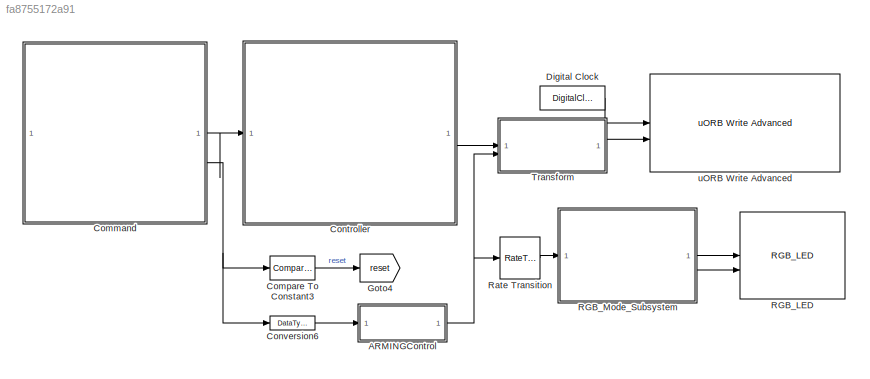
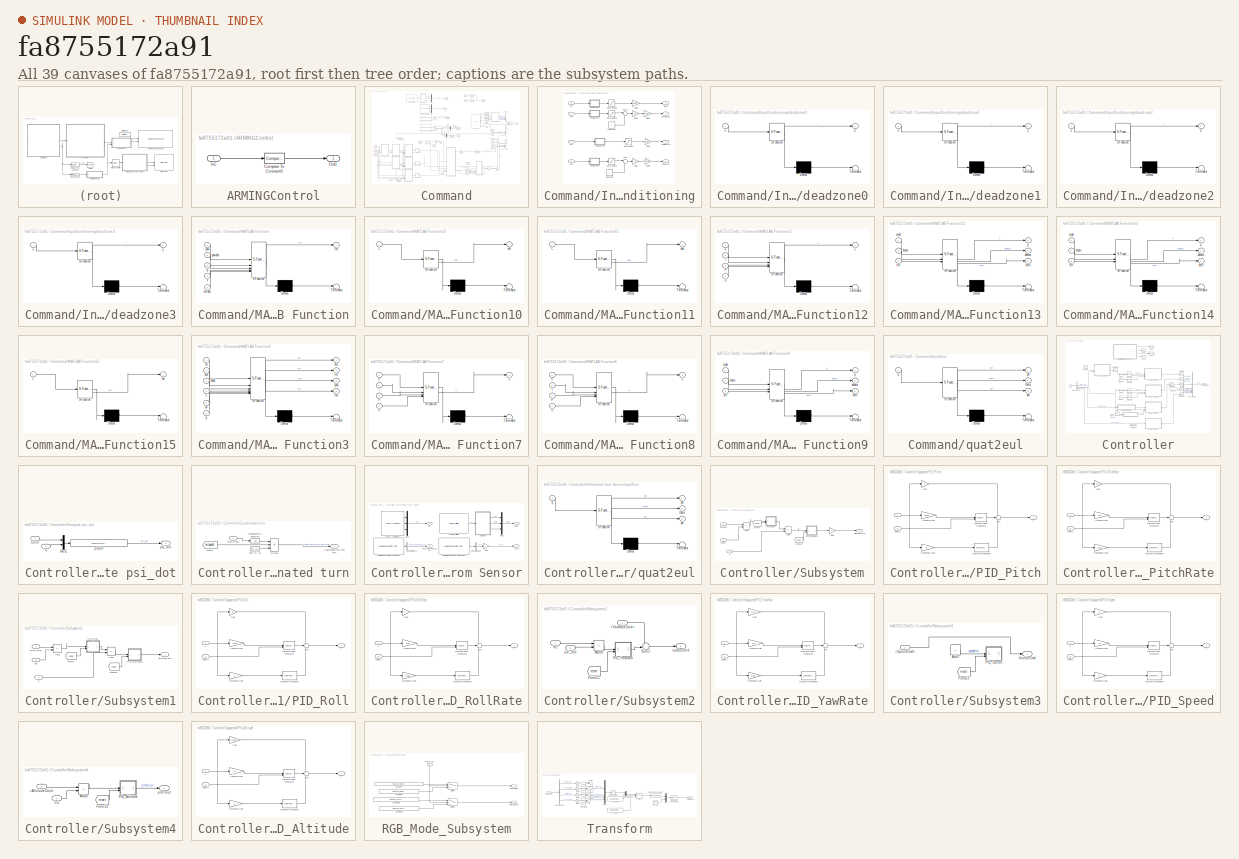
[diagram: thumbnail index - all 39 canvases of the model, root first then tree order]
MODEL slx_fa8755172a91
KIND model
CONFIG AbsTol = auto
CONFIG EnableMultiTasking = off
CONFIG FixedStep = 1/300
CONFIG MaxStep = auto
CONFIG MinStep = auto
CONFIG RelTol = 1e-3
CONFIG SampleTimeConstraint = Unconstrained
CONFIG SolverName = FixedStepDiscrete
CONFIG StartTime = 0.0
CONFIG StopTime = inf
WORKSPACE source: external: MAT-File  (data not in archive)
BLOCK [SubSystem] ARMINGControl
BLOCK [Reference] ARMINGControl/Compare To Constant3  REF=simulink/Logic and Bit
Operations/Compare
To Constant
  SourceBlock = simulink/Logic and Bit\nOperations/Compare\nTo Constant
  SourceType = Compare To Constant
BLOCK [Inport] ARMINGControl/In1
BLOCK [Outport] ARMINGControl/Out1
  VectorParamsAs1DForOutWhenUnconnected = off
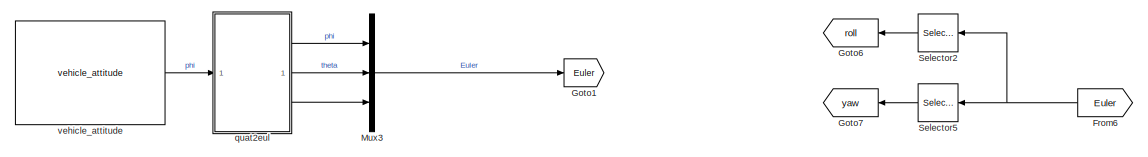
[diagram: Command - part 1/4, top center region]
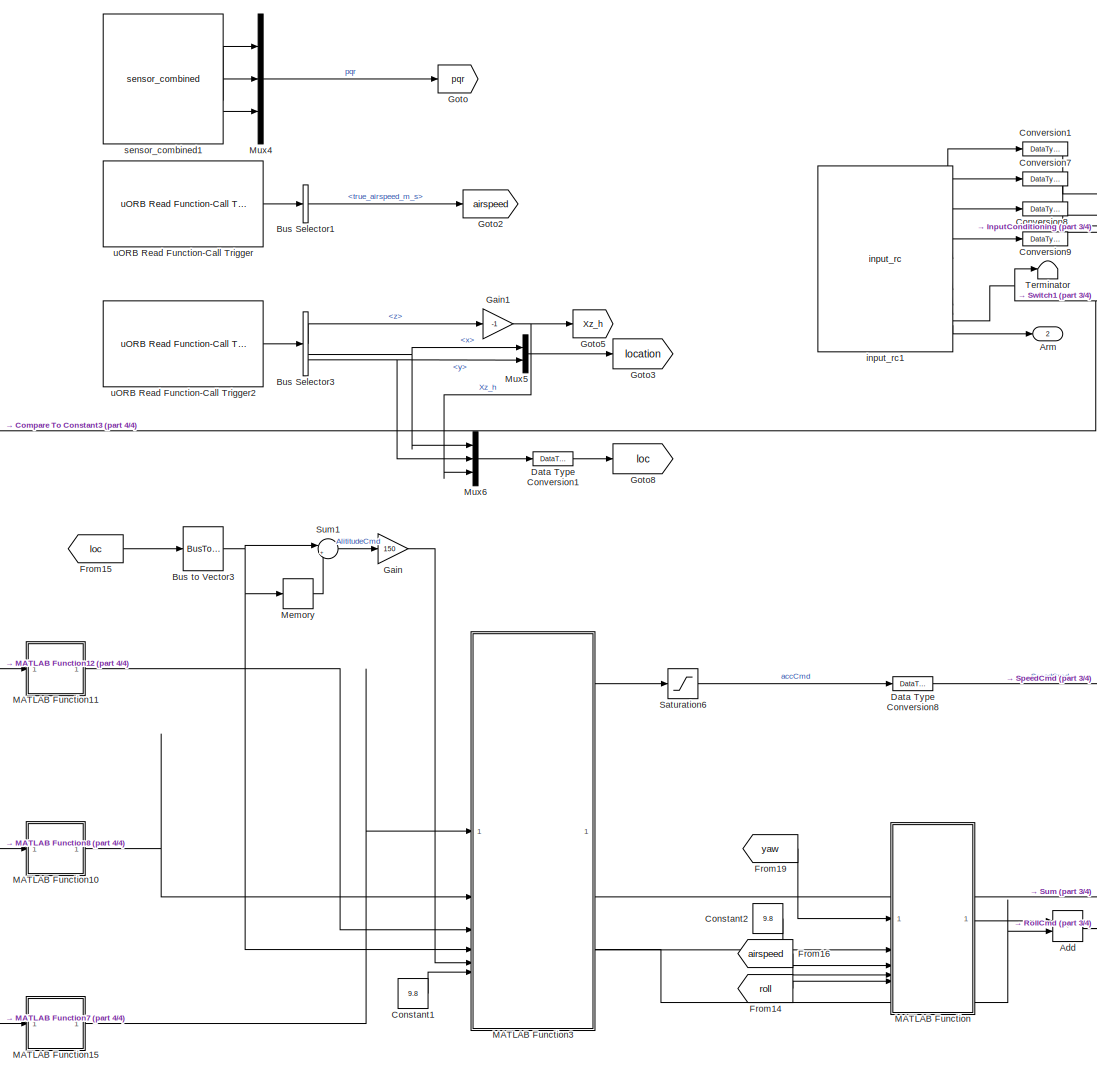
[diagram: Command - part 2/4, center side, full height]
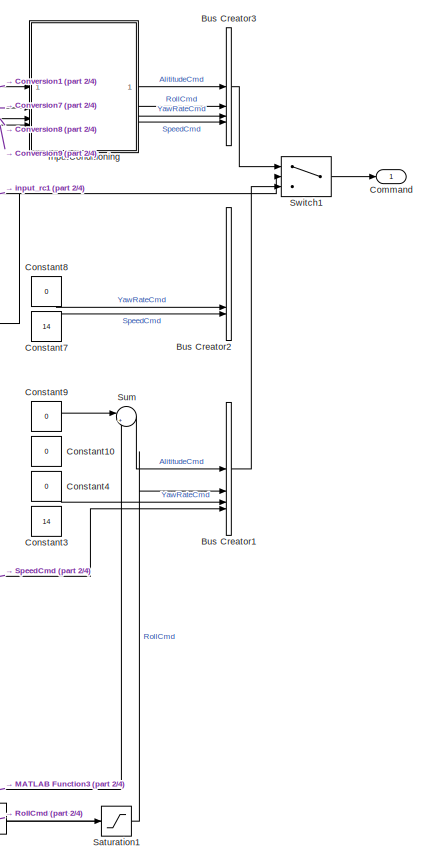
[diagram: Command - part 3/4, middle right region]
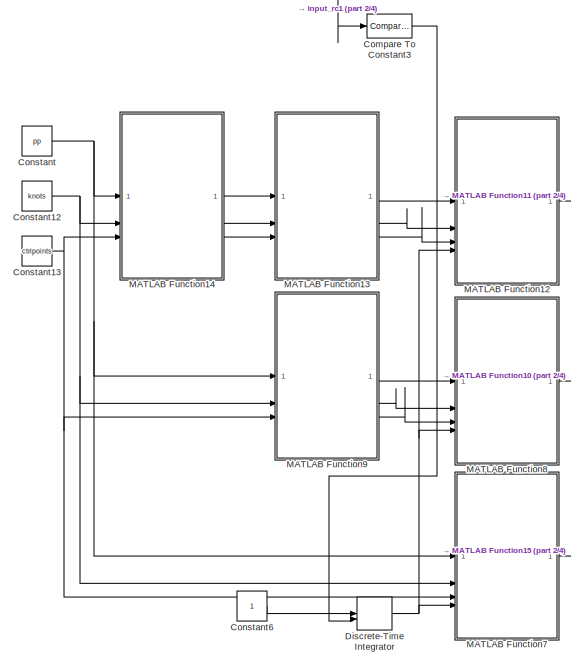
[diagram: Command - part 4/4, bottom left region]
BLOCK [SubSystem] Command
BLOCK [Sum] Command/Add
  IconShape = rectangular
BLOCK [Outport] Command/Arm
  Port = 2
  VectorParamsAs1DForOutWhenUnconnected = off
BLOCK [BusCreator] Command/Bus Creator1
  DisplayOption = bar
  InheritFromInputs = on
  Inputs = 4
BLOCK [BusCreator] Command/Bus Creator2
  DisplayOption = bar
  InheritFromInputs = on
  Inputs = 4
BLOCK [BusCreator] Command/Bus Creator3
  DisplayOption = bar
  InheritFromInputs = on
  Inputs = 4
BLOCK [BusSelector] Command/Bus Selector1
  OutputSignals = true_airspeed_m_s
BLOCK [BusSelector] Command/Bus Selector3
  OutputSignals = z,x,y
BLOCK [BusToVector] Command/Bus to Vector3
BLOCK [Outport] Command/Command
  VectorParamsAs1DForOutWhenUnconnected = off
BLOCK [Reference] Command/Compare To Constant3  REF=simulink/Logic and Bit
Operations/Compare
To Constant
  SourceBlock = simulink/Logic and Bit\nOperations/Compare\nTo Constant
  SourceType = Compare To Constant
BLOCK [Constant] Command/Constant
  Value = pp
BLOCK [Constant] Command/Constant1
  Value = 9.8
BLOCK [Constant] Command/Constant10
  SampleTime = -1
  Value = 0
BLOCK [Constant] Command/Constant12
  Value = knots
BLOCK [Constant] Command/Constant13
  Value = ctrlpoints
BLOCK [Constant] Command/Constant2
  SampleTime = -1
  Value = 9.8
BLOCK [Constant] Command/Constant3
  SampleTime = -1
  Value = 14
BLOCK [Constant] Command/Constant4
  SampleTime = -1
  Value = 0
BLOCK [Constant] Command/Constant6
BLOCK [Constant] Command/Constant7
  SampleTime = -1
  Value = 14
BLOCK [Constant] Command/Constant8
  SampleTime = -1
  Value = 0
BLOCK [Constant] Command/Constant9
  SampleTime = -1
  Value = 0
BLOCK [DataTypeConversion] Command/Conversion1
  OutDataTypeStr = double
  RndMeth = Floor
  SaturateOnIntegerOverflow = off
BLOCK [DataTypeConversion] Command/Conversion7
  OutDataTypeStr = double
  RndMeth = Floor
  SaturateOnIntegerOverflow = off
BLOCK [DataTypeConversion] Command/Conversion8
  OutDataTypeStr = double
  RndMeth = Floor
  SaturateOnIntegerOverflow = off
BLOCK [DataTypeConversion] Command/Conversion9
  OutDataTypeStr = double
  RndMeth = Floor
  SaturateOnIntegerOverflow = off
BLOCK [DataTypeConversion] Command/Data Type Conversion1
  OutDataTypeStr = double
  RndMeth = Floor
  SaturateOnIntegerOverflow = off
BLOCK [DataTypeConversion] Command/Data Type Conversion8
  OutDataTypeStr = single
  RndMeth = Floor
  SaturateOnIntegerOverflow = off
BLOCK [DiscreteIntegrator] Command/Discrete-Time Integrator
  ExternalReset = either
  ICPrevOutput = DiscIntNeverNeededParam
  ICPrevScaledInput = DiscIntNeverNeededParam
  InitialConditionSetting = Auto
  SampleTime = -1
BLOCK [From] Command/From14
  GotoTag = roll
BLOCK [From] Command/From15
  GotoTag = loc
BLOCK [From] Command/From16
  GotoTag = airspeed
BLOCK [From] Command/From19
  GotoTag = yaw
BLOCK [From] Command/From6
  GotoTag = Euler
BLOCK [Gain] Command/Gain
  Gain = 150
BLOCK [Gain] Command/Gain1
  Gain = -1
BLOCK [Goto] Command/Goto
  GotoTag = pqr
BLOCK [Goto] Command/Goto1
  GotoTag = Euler
BLOCK [Goto] Command/Goto2
  GotoTag = airspeed
BLOCK [Goto] Command/Goto3
  GotoTag = location
BLOCK [Goto] Command/Goto5
  GotoTag = Xz_h
BLOCK [Goto] Command/Goto6
  GotoTag = roll
BLOCK [Goto] Command/Goto7
  GotoTag = yaw
BLOCK [Goto] Command/Goto8
  GotoTag = loc
BLOCK [SubSystem] Command/InputConditioning
BLOCK [Outport] Command/InputConditioning/Altitude_d
  VectorParamsAs1DForOutWhenUnconnected = off
BLOCK [Constant] Command/InputConditioning/Constant
BLOCK [Constant] Command/InputConditioning/Constant1
BLOCK [Gain] Command/InputConditioning/Gain
  Gain = 0.5
BLOCK [Gain] Command/InputConditioning/Gain1
  Gain = uav.attitudectrlmax.roll
  OutDataTypeStr = Inherit: Inherit via back propagation
BLOCK [Gain] Command/InputConditioning/Gain2
  Gain = uav.rudder.max
BLOCK [Gain] Command/InputConditioning/Gain3
  Gain = uav.altitude.max
  OutDataTypeStr = Inherit: Inherit via back propagation
BLOCK [Gain] Command/InputConditioning/Gain4
  Gain = uav.speed.max
BLOCK [Gain] Command/InputConditioning/Gain5
  Gain = 0.5
BLOCK [Outport] Command/InputConditioning/Roll_d
  Port = 2
  VectorParamsAs1DForOutWhenUnconnected = off
BLOCK [Saturate] Command/InputConditioning/Saturation1
  LowerLimit = -1
  UpperLimit = 1
BLOCK [Saturate] Command/InputConditioning/Saturation7
  LowerLimit = -1
  UpperLimit = 1
BLOCK [Saturate] Command/InputConditioning/Saturation8
  LowerLimit = -1
  UpperLimit = 1
BLOCK [Saturate] Command/InputConditioning/Saturation9
  LowerLimit = -1
  UpperLimit = 1
BLOCK [Outport] Command/InputConditioning/Speed_d
  Port = 4
  VectorParamsAs1DForOutWhenUnconnected = off
BLOCK [Sum] Command/InputConditioning/Sum
  Inputs = |++
BLOCK [Sum] Command/InputConditioning/Sum1
  Inputs = |++
BLOCK [Inport] Command/InputConditioning/ch1 
BLOCK [Inport] Command/InputConditioning/ch2
  Port = 2
BLOCK [Inport] Command/InputConditioning/ch3
  Port = 3
BLOCK [Inport] Command/InputConditioning/ch4
  Port = 4
BLOCK [SubSystem] Command/InputConditioning/deadzone0
  ErrorFcn = Stateflow.Translate.translate
  PermitHierarchicalResolution = ExplicitOnly
  SFBlockType = MATLAB Function
  TreatAsAtomicUnit = on
BLOCK [Demux] Command/InputConditioning/deadzone0/ Demux 
  Outputs = 1
BLOCK [S-Function] Command/InputConditioning/deadzone0/ SFunction 
  EnableBusSupport = on
  FunctionName = sf_sfun
  PortCounts = [1 2]
  SFcnIsStateOwnerBlock = off
  SFunctionDeploymentMode = off
  Tag = Stateflow S-Function 4
BLOCK [Terminator] Command/InputConditioning/deadzone0/ Terminator 
BLOCK [Inport] Command/InputConditioning/deadzone0/u
BLOCK [Outport] Command/InputConditioning/deadzone0/y
  VectorParamsAs1DForOutWhenUnconnected = off
BLOCK [SubSystem] Command/InputConditioning/deadzone1
  ErrorFcn = Stateflow.Translate.translate
  PermitHierarchicalResolution = ExplicitOnly
  SFBlockType = MATLAB Function
  TreatAsAtomicUnit = on
BLOCK [Demux] Command/InputConditioning/deadzone1/ Demux 
  Outputs = 1
BLOCK [S-Function] Command/InputConditioning/deadzone1/ SFunction 
  EnableBusSupport = on
  FunctionName = sf_sfun
  PortCounts = [1 2]
  SFcnIsStateOwnerBlock = off
  SFunctionDeploymentMode = off
  Tag = Stateflow S-Function 5
BLOCK [Terminator] Command/InputConditioning/deadzone1/ Terminator 
BLOCK [Inport] Command/InputConditioning/deadzone1/u
BLOCK [Outport] Command/InputConditioning/deadzone1/y
  VectorParamsAs1DForOutWhenUnconnected = off
BLOCK [SubSystem] Command/InputConditioning/deadzone2
  ErrorFcn = Stateflow.Translate.translate
  PermitHierarchicalResolution = ExplicitOnly
  SFBlockType = MATLAB Function
  TreatAsAtomicUnit = on
BLOCK [Demux] Command/InputConditioning/deadzone2/ Demux 
  Outputs = 1
BLOCK [S-Function] Command/InputConditioning/deadzone2/ SFunction 
  EnableBusSupport = on
  FunctionName = sf_sfun
  PortCounts = [1 2]
  SFcnIsStateOwnerBlock = off
  SFunctionDeploymentMode = off
  Tag = Stateflow S-Function 6
BLOCK [Terminator] Command/InputConditioning/deadzone2/ Terminator 
BLOCK [Inport] Command/InputConditioning/deadzone2/u
BLOCK [Outport] Command/InputConditioning/deadzone2/y
  VectorParamsAs1DForOutWhenUnconnected = off
BLOCK [SubSystem] Command/InputConditioning/deadzone3
  ErrorFcn = Stateflow.Translate.translate
  PermitHierarchicalResolution = ExplicitOnly
  SFBlockType = MATLAB Function
  TreatAsAtomicUnit = on
BLOCK [Demux] Command/InputConditioning/deadzone3/ Demux 
  Outputs = 1
BLOCK [S-Function] Command/InputConditioning/deadzone3/ SFunction 
  EnableBusSupport = on
  FunctionName = sf_sfun
  PortCounts = [1 2]
  SFcnIsStateOwnerBlock = off
  SFunctionDeploymentMode = off
  Tag = Stateflow S-Function 7
BLOCK [Terminator] Command/InputConditioning/deadzone3/ Terminator 
BLOCK [Inport] Command/InputConditioning/deadzone3/u
BLOCK [Outport] Command/InputConditioning/deadzone3/y
  VectorParamsAs1DForOutWhenUnconnected = off
BLOCK [Outport] Command/InputConditioning/yawRate_d
  Port = 3
  VectorParamsAs1DForOutWhenUnconnected = off
BLOCK [SubSystem] Command/MATLAB Function
  ErrorFcn = Stateflow.Translate.translate
  PermitHierarchicalResolution = ExplicitOnly
  SFBlockType = MATLAB Function
  TreatAsAtomicUnit = on
BLOCK [Demux] Command/MATLAB Function/ Demux 
  Outputs = 1
BLOCK [S-Function] Command/MATLAB Function/ SFunction 
  EnableBusSupport = on
  FunctionName = sf_sfun
  PortCounts = [5 2]
  SFcnIsStateOwnerBlock = off
  SFunctionDeploymentMode = off
  Tag = Stateflow S-Function 1
BLOCK [Terminator] Command/MATLAB Function/ Terminator 
BLOCK [Inport] Command/MATLAB Function/V
  Port = 4
BLOCK [Inport] Command/MATLAB Function/g
  Port = 3
BLOCK [Outport] Command/MATLAB Function/roll
BLOCK [Inport] Command/MATLAB Function/rolldes
  Port = 5
BLOCK [Inport] Command/MATLAB Function/yaw
BLOCK [Inport] Command/MATLAB Function/yawdes
  Port = 2
BLOCK [SubSystem] Command/MATLAB Function10
  ErrorFcn = Stateflow.Translate.translate
  PermitHierarchicalResolution = ExplicitOnly
  SFBlockType = MATLAB Function
  TreatAsAtomicUnit = on
BLOCK [Demux] Command/MATLAB Function10/ Demux 
  Outputs = 1
BLOCK [S-Function] Command/MATLAB Function10/ SFunction 
  EnableBusSupport = on
  FunctionName = sf_sfun
  PortCounts = [1 2]
  SFcnIsStateOwnerBlock = off
  SFunctionDeploymentMode = off
  Tag = Stateflow S-Function 14
BLOCK [Terminator] Command/MATLAB Function10/ Terminator 
BLOCK [Inport] Command/MATLAB Function10/C
BLOCK [Outport] Command/MATLAB Function10/vdv
BLOCK [SubSystem] Command/MATLAB Function11
  ErrorFcn = Stateflow.Translate.translate
  PermitHierarchicalResolution = ExplicitOnly
  SFBlockType = MATLAB Function
  TreatAsAtomicUnit = on
BLOCK [Demux] Command/MATLAB Function11/ Demux 
  Outputs = 1
BLOCK [S-Function] Command/MATLAB Function11/ SFunction 
  EnableBusSupport = on
  FunctionName = sf_sfun
  PortCounts = [1 2]
  SFcnIsStateOwnerBlock = off
  SFunctionDeploymentMode = off
  Tag = Stateflow S-Function 15
BLOCK [Terminator] Command/MATLAB Function11/ Terminator 
BLOCK [Inport] Command/MATLAB Function11/C
BLOCK [Outport] Command/MATLAB Function11/ada
BLOCK [SubSystem] Command/MATLAB Function12
  ErrorFcn = Stateflow.Translate.translate
  LibrarySourceBlock = simulink/User-Defined\nFunctions/MATLAB Function
  PermitHierarchicalResolution = ExplicitOnly
  SFBlockType = MATLAB Function
  TreatAsAtomicUnit = on
BLOCK [Demux] Command/MATLAB Function12/ Demux 
  Outputs = 1
BLOCK [S-Function] Command/MATLAB Function12/ SFunction 
  EnableBusSupport = on
  FunctionName = sf_sfun
  PortCounts = [4 2]
  SFcnIsStateOwnerBlock = off
  SFunctionDeploymentMode = off
  Tag = Stateflow S-Function 16
BLOCK [Terminator] Command/MATLAB Function12/ Terminator 
BLOCK [Outport] Command/MATLAB Function12/C
BLOCK [Inport] Command/MATLAB Function12/P
  Port = 3
BLOCK [Inport] Command/MATLAB Function12/U
  Port = 4
BLOCK [Inport] Command/MATLAB Function12/n
BLOCK [Inport] Command/MATLAB Function12/t
  Port = 2
BLOCK [SubSystem] Command/MATLAB Function13
  ErrorFcn = Stateflow.Translate.translate
  LibrarySourceBlock = simulink/User-Defined\nFunctions/MATLAB Function
  PermitHierarchicalResolution = ExplicitOnly
  SFBlockType = MATLAB Function
  TreatAsAtomicUnit = on
BLOCK [Demux] Command/MATLAB Function13/ Demux 
  Outputs = 1
BLOCK [S-Function] Command/MATLAB Function13/ SFunction 
  EnableBusSupport = on
  FunctionName = sf_sfun
  PortCounts = [3 4]
  SFcnIsStateOwnerBlock = off
  SFunctionDeploymentMode = off
  Tag = Stateflow S-Function 17
BLOCK [Terminator] Command/MATLAB Function13/ Terminator 
BLOCK [Inport] Command/MATLAB Function13/ctrl
  Port = 3
BLOCK [Outport] Command/MATLAB Function13/dctrl
  Port = 3
BLOCK [Outport] Command/MATLAB Function13/dknots
  Port = 2
BLOCK [Inport] Command/MATLAB Function13/knots
  Port = 2
BLOCK [Inport] Command/MATLAB Function13/order
BLOCK [Outport] Command/MATLAB Function13/p
BLOCK [SubSystem] Command/MATLAB Function14
  ErrorFcn = Stateflow.Translate.translate
  LibrarySourceBlock = simulink/User-Defined\nFunctions/MATLAB Function
  PermitHierarchicalResolution = ExplicitOnly
  SFBlockType = MATLAB Function
  TreatAsAtomicUnit = on
BLOCK [Demux] Command/MATLAB Function14/ Demux 
  Outputs = 1
BLOCK [S-Function] Command/MATLAB Function14/ SFunction 
  EnableBusSupport = on
  FunctionName = sf_sfun
  PortCounts = [3 4]
  SFcnIsStateOwnerBlock = off
  SFunctionDeploymentMode = off
  Tag = Stateflow S-Function 18
BLOCK [Terminator] Command/MATLAB Function14/ Terminator 
BLOCK [Inport] Command/MATLAB Function14/ctrl
  Port = 3
BLOCK [Outport] Command/MATLAB Function14/dctrl
  Port = 3
BLOCK [Outport] Command/MATLAB Function14/dknots
  Port = 2
BLOCK [Inport] Command/MATLAB Function14/knots
  Port = 2
BLOCK [Inport] Command/MATLAB Function14/order
BLOCK [Outport] Command/MATLAB Function14/p
BLOCK [SubSystem] Command/MATLAB Function15
  ErrorFcn = Stateflow.Translate.translate
  PermitHierarchicalResolution = ExplicitOnly
  SFBlockType = MATLAB Function
  TreatAsAtomicUnit = on
BLOCK [Demux] Command/MATLAB Function15/ Demux 
  Outputs = 1
BLOCK [S-Function] Command/MATLAB Function15/ SFunction 
  EnableBusSupport = on
  FunctionName = sf_sfun
  PortCounts = [1 2]
  SFcnIsStateOwnerBlock = off
  SFunctionDeploymentMode = off
  Tag = Stateflow S-Function 19
BLOCK [Terminator] Command/MATLAB Function15/ Terminator 
BLOCK [Inport] Command/MATLAB Function15/C
BLOCK [Outport] Command/MATLAB Function15/xdx
BLOCK [SubSystem] Command/MATLAB Function3
  ErrorFcn = Stateflow.Translate.translate
  PermitHierarchicalResolution = ExplicitOnly
  SFBlockType = MATLAB Function
  TreatAsAtomicUnit = on
BLOCK [Demux] Command/MATLAB Function3/ Demux 
  Outputs = 1
BLOCK [S-Function] Command/MATLAB Function3/ SFunction 
  EnableBusSupport = on
  FunctionName = sf_sfun
  PortCounts = [6 5]
  SFcnIsStateOwnerBlock = off
  SFunctionDeploymentMode = off
  Tag = Stateflow S-Function 3
BLOCK [Terminator] Command/MATLAB Function3/ Terminator 
BLOCK [Outport] Command/MATLAB Function3/Hz
  Port = 2
BLOCK [Outport] Command/MATLAB Function3/av1
BLOCK [Inport] Command/MATLAB Function3/ddxd
  Port = 3
BLOCK [Inport] Command/MATLAB Function3/dx
  Port = 5
BLOCK [Inport] Command/MATLAB Function3/dxd
  Port = 2
BLOCK [Inport] Command/MATLAB Function3/g
  Port = 6
BLOCK [Outport] Command/MATLAB Function3/roll
  Port = 4
BLOCK [Inport] Command/MATLAB Function3/x
  Port = 4
BLOCK [Inport] Command/MATLAB Function3/xd
BLOCK [Outport] Command/MATLAB Function3/yaw
  Port = 3
BLOCK [SubSystem] Command/MATLAB Function7
  ErrorFcn = Stateflow.Translate.translate
  LibrarySourceBlock = simulink/User-Defined\nFunctions/MATLAB Function
  PermitHierarchicalResolution = ExplicitOnly
  SFBlockType = MATLAB Function
  TreatAsAtomicUnit = on
BLOCK [Demux] Command/MATLAB Function7/ Demux 
  Outputs = 1
BLOCK [S-Function] Command/MATLAB Function7/ SFunction 
  EnableBusSupport = on
  FunctionName = sf_sfun
  PortCounts = [4 2]
  SFcnIsStateOwnerBlock = off
  SFunctionDeploymentMode = off
  Tag = Stateflow S-Function 20
BLOCK [Terminator] Command/MATLAB Function7/ Terminator 
BLOCK [Outport] Command/MATLAB Function7/C
BLOCK [Inport] Command/MATLAB Function7/P
  Port = 3
BLOCK [Inport] Command/MATLAB Function7/U
  Port = 4
BLOCK [Inport] Command/MATLAB Function7/n
BLOCK [Inport] Command/MATLAB Function7/t
  Port = 2
BLOCK [SubSystem] Command/MATLAB Function8
  ErrorFcn = Stateflow.Translate.translate
  LibrarySourceBlock = simulink/User-Defined\nFunctions/MATLAB Function
  PermitHierarchicalResolution = ExplicitOnly
  SFBlockType = MATLAB Function
  TreatAsAtomicUnit = on
BLOCK [Demux] Command/MATLAB Function8/ Demux 
  Outputs = 1
BLOCK [S-Function] Command/MATLAB Function8/ SFunction 
  EnableBusSupport = on
  FunctionName = sf_sfun
  PortCounts = [4 2]
  SFcnIsStateOwnerBlock = off
  SFunctionDeploymentMode = off
  Tag = Stateflow S-Function 21
BLOCK [Terminator] Command/MATLAB Function8/ Terminator 
BLOCK [Outport] Command/MATLAB Function8/C
BLOCK [Inport] Command/MATLAB Function8/P
  Port = 3
BLOCK [Inport] Command/MATLAB Function8/U
  Port = 4
BLOCK [Inport] Command/MATLAB Function8/n
BLOCK [Inport] Command/MATLAB Function8/t
  Port = 2
BLOCK [SubSystem] Command/MATLAB Function9
  ErrorFcn = Stateflow.Translate.translate
  LibrarySourceBlock = simulink/User-Defined\nFunctions/MATLAB Function
  PermitHierarchicalResolution = ExplicitOnly
  SFBlockType = MATLAB Function
  TreatAsAtomicUnit = on
BLOCK [Demux] Command/MATLAB Function9/ Demux 
  Outputs = 1
BLOCK [S-Function] Command/MATLAB Function9/ SFunction 
  EnableBusSupport = on
  FunctionName = sf_sfun
  PortCounts = [3 4]
  SFcnIsStateOwnerBlock = off
  SFunctionDeploymentMode = off
  Tag = Stateflow S-Function 22
BLOCK [Terminator] Command/MATLAB Function9/ Terminator 
BLOCK [Inport] Command/MATLAB Function9/ctrl
  Port = 3
BLOCK [Outport] Command/MATLAB Function9/dctrl
  Port = 3
BLOCK [Outport] Command/MATLAB Function9/dknots
  Port = 2
BLOCK [Inport] Command/MATLAB Function9/knots
  Port = 2
BLOCK [Inport] Command/MATLAB Function9/order
BLOCK [Outport] Command/MATLAB Function9/p
BLOCK [Memory] Command/Memory
  InheritSampleTime = on
BLOCK [Mux] Command/Mux3
  DisplayOption = bar
  Inputs = 3
BLOCK [Mux] Command/Mux4
  DisplayOption = bar
  Inputs = 3
BLOCK [Mux] Command/Mux5
  DisplayOption = bar
  Inputs = 2
BLOCK [Mux] Command/Mux6
  DisplayOption = bar
  Inputs = 3
BLOCK [Saturate] Command/Saturation1
  LowerLimit = -0.4
  UpperLimit = 0.4
BLOCK [Saturate] Command/Saturation6
  LowerLimit = -10
  UpperLimit = 10
BLOCK [Selector] Command/Selector2
  IndexOptions = Index vector (dialog)
  Indices = 1
  InputPortWidth = 3
  OutputSizes = 1
BLOCK [Selector] Command/Selector5
  IndexOptions = Index vector (dialog)
  Indices = 3
  InputPortWidth = 3
  OutputSizes = 1
BLOCK [Sum] Command/Sum
  Inputs = |++
BLOCK [Sum] Command/Sum1
  Inputs = |+-
BLOCK [Switch] Command/Switch1
  Criteria = u2 > Threshold
  InputSameDT = off
  SaturateOnIntegerOverflow = off
  Threshold = 1500
BLOCK [Terminator] Command/Terminator
BLOCK [Reference] Command/input_rc1  REF=pixhawk_slib_sensors_actuators/input_rc
  Description = RC Input Block\n\nThis block provides user input control to the model.\nIt uses the input_rc uORB topic.\n\nThe user has the ability to choose which channels are available as outputs from this block and also some optional outputs. These include \nChannels 1 through 18\ndouble data type indicating the PWM value from the controller \nmeasured pulse widths for each of the supported channels \nChannel Count \nu...<+1797ch>
  SourceBlock = pixhawk_slib_sensors_actuators/input_rc
  SourceProductName = Pixhawk Target Blocks
  SourceType = PX4_Input_RC
BLOCK [SubSystem] Command/quat2eul
  ErrorFcn = Stateflow.Translate.translate
  PermitHierarchicalResolution = ExplicitOnly
  SFBlockType = MATLAB Function
  TreatAsAtomicUnit = on
BLOCK [Demux] Command/quat2eul/ Demux 
  Outputs = 1
BLOCK [S-Function] Command/quat2eul/ SFunction 
  EnableBusSupport = on
  FunctionName = sf_sfun
  PortCounts = [1 4]
  SFcnIsStateOwnerBlock = off
  SFunctionDeploymentMode = off
  Tag = Stateflow S-Function 8
BLOCK [Terminator] Command/quat2eul/ Terminator 
BLOCK [Outport] Command/quat2eul/phi
  VectorParamsAs1DForOutWhenUnconnected = off
BLOCK [Outport] Command/quat2eul/psi
  Port = 3
  VectorParamsAs1DForOutWhenUnconnected = off
BLOCK [Inport] Command/quat2eul/q
BLOCK [Outport] Command/quat2eul/theta
  Port = 2
  VectorParamsAs1DForOutWhenUnconnected = off
BLOCK [Reference] Command/sensor_combined1  REF=pixhawk_slib_sensors_actuators/sensor_combined
  Description = Sensor Combined Block\n\nThis block enables access to the various sensors available on the px4fmu-v2 hardware.  \nThe user can use these signals in the Simulink control model.  \nThe sample time needs to be provided in the mask dialog.  \nOptional output ports can also be selected.  \nRefer to the sample model: px4demo_attitude_control.slx\n\nSignal definitions: \nMagnetometer (x,y,z) - single values – Mag...<+514ch>
  SourceBlock = pixhawk_slib_sensors_actuators/sensor_combined
  SourceProductName = Pixhawk Target Blocks
  SourceType = PX4_Sensor_Combined
BLOCK [Reference] Command/uORB Read Function-Call Trigger  REF=pixhawk_slib_uORB_RW/uORB Read Function-Call Trigger
  SourceBlock = pixhawk_slib_uORB_RW/uORB Read Function-Call Trigger
  SourceProductName = Pixhawk Target Blocks
BLOCK [Reference] Command/uORB Read Function-Call Trigger2  REF=pixhawk_slib_uORB_RW/uORB Read Function-Call Trigger
  SourceBlock = pixhawk_slib_uORB_RW/uORB Read Function-Call Trigger
  SourceProductName = Pixhawk Target Blocks
BLOCK [Reference] Command/vehicle_attitude  REF=pixhawk_slib_sensors_actuators/vehicle_attitude
  SourceBlock = pixhawk_slib_sensors_actuators/vehicle_attitude
  SourceProductName = Pixhawk Target Blocks
  SourceType = PX4_Vehicle_Attitude
BLOCK [Reference] Compare To Constant3  REF=simulink/Logic and Bit
Operations/Compare
To Constant
  SourceBlock = simulink/Logic and Bit\nOperations/Compare\nTo Constant
  SourceType = Compare To Constant
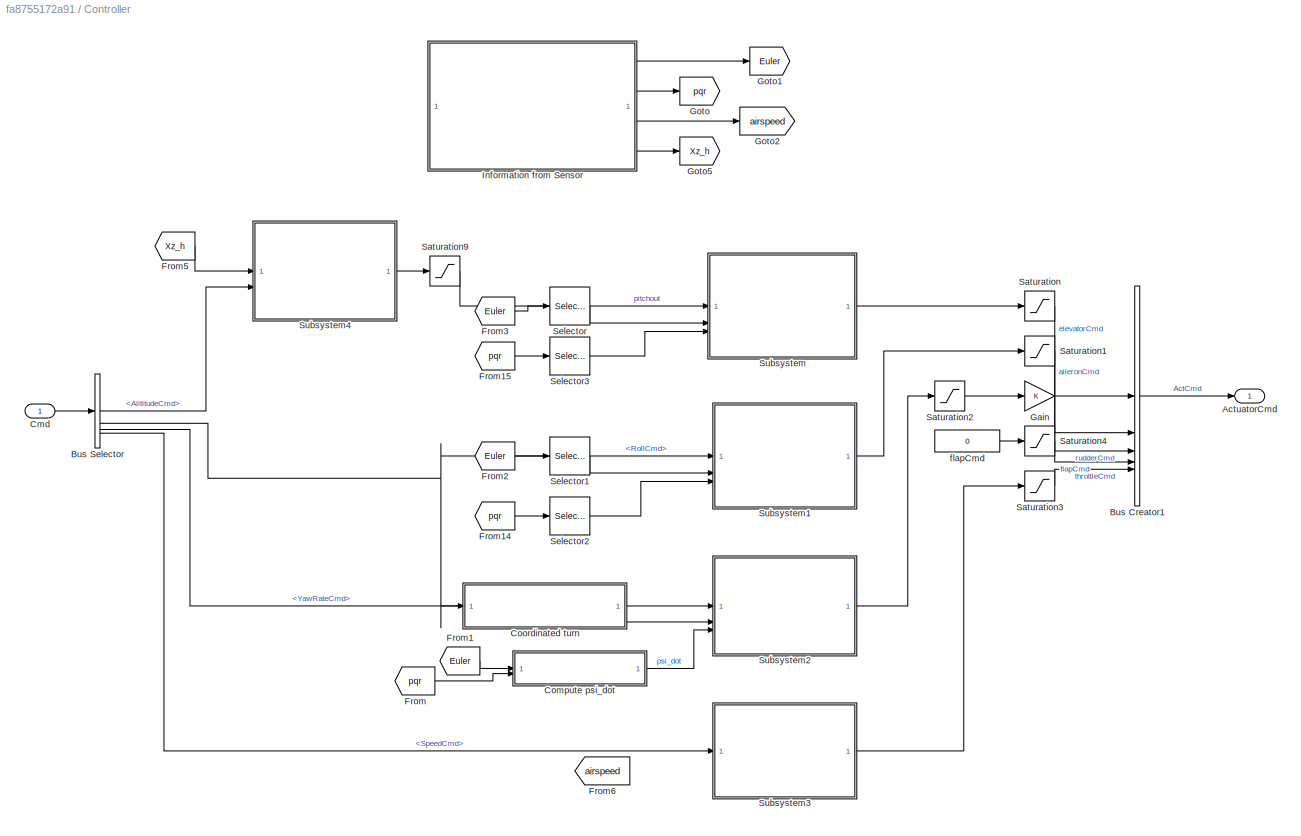
BLOCK [SubSystem] Controller
BLOCK [Outport] Controller/ActuatorCmd
  VectorParamsAs1DForOutWhenUnconnected = off
BLOCK [BusCreator] Controller/Bus Creator1
  DisplayOption = bar
  InheritFromInputs = on
  Inputs = 5
BLOCK [BusSelector] Controller/Bus Selector
  OutputSignals = AlititudeCmd,RollCmd,YawRateCmd,SpeedCmd
BLOCK [Inport] Controller/Cmd
BLOCK [SubSystem] Controller/Compute psi_dot
BLOCK [Inport] Controller/Compute psi_dot/Euler
BLOCK [Inport] Controller/Compute psi_dot/G
  Port = 2
BLOCK [Mux] Controller/Compute psi_dot/Mux1
  DisplayOption = bar
  Inputs = 2
BLOCK [Outport] Controller/Compute psi_dot/psi_dot
  Unit = rad/S
  VectorParamsAs1DForOutWhenUnconnected = off
BLOCK [Fcn] Controller/Compute psi_dot/psidot
  Expr = (u[5]*sin(u[1])+u[6]*cos(u[1]))/cos(u[2])
BLOCK [SubSystem] Controller/Coordinated turn
BLOCK [Inport] Controller/Coordinated turn/<RollCmd>
BLOCK [Product] Controller/Coordinated turn/Divide
  Inputs = */*
BLOCK [From] Controller/Coordinated turn/From4
  GotoTag = airspeed
BLOCK [Trigonometry] Controller/Coordinated turn/Trigonometric Function
  Operator = tan
BLOCK [Outport] Controller/Coordinated turn/YawRateCmd from Roll
  VectorParamsAs1DForOutWhenUnconnected = off
BLOCK [Constant] Controller/Coordinated turn/env.ISA_g
  Value = env.ISA_g
BLOCK [From] Controller/From
  GotoTag = pqr
BLOCK [From] Controller/From1
  GotoTag = Euler
BLOCK [From] Controller/From14
  GotoTag = pqr
BLOCK [From] Controller/From15
  GotoTag = pqr
BLOCK [From] Controller/From2
  GotoTag = Euler
BLOCK [From] Controller/From3
  GotoTag = Euler
BLOCK [From] Controller/From5
  GotoTag = Xz_h
BLOCK [From] Controller/From6
  GotoTag = airspeed
BLOCK [Gain] Controller/Gain
BLOCK [Goto] Controller/Goto
  GotoTag = pqr
BLOCK [Goto] Controller/Goto1
  GotoTag = Euler
BLOCK [Goto] Controller/Goto2
  GotoTag = airspeed
BLOCK [Goto] Controller/Goto5
  GotoTag = Xz_h
BLOCK [SubSystem] Controller/Information from Sensor
BLOCK [Outport] Controller/Information from Sensor/<true_airspeed_m_s>
  Port = 3
  VectorParamsAs1DForOutWhenUnconnected = off
BLOCK [BusSelector] Controller/Information from Sensor/Bus Selector1
  OutputSignals = true_airspeed_m_s
BLOCK [BusSelector] Controller/Information from Sensor/Bus Selector3
  OutputSignals = z
BLOCK [Outport] Controller/Information from Sensor/Euler
  VectorParamsAs1DForOutWhenUnconnected = off
BLOCK [Gain] Controller/Information from Sensor/Gain1
  Gain = -1
BLOCK [Mux] Controller/Information from Sensor/Mux3
  DisplayOption = bar
  Inputs = 3
BLOCK [Mux] Controller/Information from Sensor/Mux4
  DisplayOption = bar
  Inputs = 3
BLOCK [Outport] Controller/Information from Sensor/Xz_h
  Port = 4
  VectorParamsAs1DForOutWhenUnconnected = off
BLOCK [Outport] Controller/Information from Sensor/pqr
  Port = 2
  VectorParamsAs1DForOutWhenUnconnected = off
BLOCK [SubSystem] Controller/Information from Sensor/quat2eul
  ErrorFcn = Stateflow.Translate.translate
  PermitHierarchicalResolution = ExplicitOnly
  SFBlockType = MATLAB Function
  TreatAsAtomicUnit = on
BLOCK [Demux] Controller/Information from Sensor/quat2eul/ Demux 
  Outputs = 1
BLOCK [S-Function] Controller/Information from Sensor/quat2eul/ SFunction 
  EnableBusSupport = on
  FunctionName = sf_sfun
  PortCounts = [1 4]
  SFcnIsStateOwnerBlock = off
  SFunctionDeploymentMode = off
  Tag = Stateflow S-Function 10
BLOCK [Terminator] Controller/Information from Sensor/quat2eul/ Terminator 
BLOCK [Outport] Controller/Information from Sensor/quat2eul/phi
  VectorParamsAs1DForOutWhenUnconnected = off
BLOCK [Outport] Controller/Information from Sensor/quat2eul/psi
  Port = 3
  VectorParamsAs1DForOutWhenUnconnected = off
BLOCK [Inport] Controller/Information from Sensor/quat2eul/q
BLOCK [Outport] Controller/Information from Sensor/quat2eul/theta
  Port = 2
  VectorParamsAs1DForOutWhenUnconnected = off
BLOCK [Reference] Controller/Information from Sensor/sensor_combined1  REF=pixhawk_slib_sensors_actuators/sensor_combined
  Description = Sensor Combined Block\n\nThis block enables access to the various sensors available on the px4fmu-v2 hardware.  \nThe user can use these signals in the Simulink control model.  \nThe sample time needs to be provided in the mask dialog.  \nOptional output ports can also be selected.  \nRefer to the sample model: px4demo_attitude_control.slx\n\nSignal definitions: \nMagnetometer (x,y,z) - single values – Mag...<+514ch>
  SourceBlock = pixhawk_slib_sensors_actuators/sensor_combined
  SourceProductName = Pixhawk Target Blocks
  SourceType = PX4_Sensor_Combined
BLOCK [Reference] Controller/Information from Sensor/uORB Read Function-Call Trigger  REF=pixhawk_slib_uORB_RW/uORB Read Function-Call Trigger
  SourceBlock = pixhawk_slib_uORB_RW/uORB Read Function-Call Trigger
  SourceProductName = Pixhawk Target Blocks
BLOCK [Reference] Controller/Information from Sensor/uORB Read Function-Call Trigger2  REF=pixhawk_slib_uORB_RW/uORB Read Function-Call Trigger
  SourceBlock = pixhawk_slib_uORB_RW/uORB Read Function-Call Trigger
  SourceProductName = Pixhawk Target Blocks
BLOCK [Reference] Controller/Information from Sensor/vehicle_attitude  REF=pixhawk_slib_sensors_actuators/vehicle_attitude
  SourceBlock = pixhawk_slib_sensors_actuators/vehicle_attitude
  SourceProductName = Pixhawk Target Blocks
  SourceType = PX4_Vehicle_Attitude
BLOCK [Saturate] Controller/Saturation
  LowerLimit = uav.elevator.min
  UpperLimit = uav.elevator.max
BLOCK [Saturate] Controller/Saturation1
  LowerLimit = uav.aileron.min
  UpperLimit = uav.aileron.max
BLOCK [Saturate] Controller/Saturation2
  LowerLimit = uav.rudder.min
  UpperLimit = uav.rudder.max
BLOCK [Saturate] Controller/Saturation3
  LowerLimit = uav.throttlepercent.min
  UpperLimit = uav.throttlepercent.max
BLOCK [Saturate] Controller/Saturation4
  LowerLimit = uav.flap.min
  UpperLimit = uav.flap.max
BLOCK [Saturate] Controller/Saturation9
  LowerLimit = -uav.attitudectrlmax.pitch
  UpperLimit = uav.attitudectrlmax.pitch
BLOCK [Selector] Controller/Selector
  IndexOptions = Index vector (dialog)
  Indices = 2
  InputPortWidth = 3
  OutputSizes = 1
BLOCK [Selector] Controller/Selector1
  IndexOptions = Index vector (dialog)
  Indices = 1
  InputPortWidth = 3
  OutputSizes = 1
BLOCK [Selector] Controller/Selector2
  IndexOptions = Index vector (dialog)
  Indices = 1
  InputPortWidth = 3
  OutputSizes = 1
BLOCK [Selector] Controller/Selector3
  IndexOptions = Index vector (dialog)
  Indices = 2
  InputPortWidth = 3
  OutputSizes = 1
BLOCK [SubSystem] Controller/Subsystem
BLOCK [Sum] Controller/Subsystem/Add1
  IconShape = rectangular
  Inputs = +-
BLOCK [Sum] Controller/Subsystem/Add6
  IconShape = rectangular
  Inputs = +-
BLOCK [From] Controller/Subsystem/From7
  GotoTag = reset
  TagVisibility = global
BLOCK [From] Controller/Subsystem/From8
  GotoTag = reset
  TagVisibility = global
BLOCK [Gain] Controller/Subsystem/Gain2
  Gain = -1
BLOCK [SubSystem] Controller/Subsystem/PID_Pitch
BLOCK [Gain] Controller/Subsystem/PID_Pitch/Derivative Gain
  DisableCoverage = on
  Gain = 0
  OutMax = 100
  OutMin = -100
  ParamMax = 100
  ParamMin = -100
BLOCK [Reference] Controller/Subsystem/PID_Pitch/Discrete Derivative  REF=simulink/Discrete/Discrete Derivative
  SourceBlock = simulink/Discrete/Discrete Derivative
  SourceType = Discrete Derivative
BLOCK [DiscreteIntegrator] Controller/Subsystem/PID_Pitch/Discrete-Time Integrator
  ExternalReset = either
  ICPrevOutput = DiscIntNeverNeededParam
  ICPrevScaledInput = DiscIntNeverNeededParam
  InitialConditionSetting = Auto
  SampleTime = -1
BLOCK [Gain] Controller/Subsystem/PID_Pitch/Gain
  Gain = 4
BLOCK [Gain] Controller/Subsystem/PID_Pitch/Integral Gain
  DisableCoverage = on
  Gain = 0.01
BLOCK [Sum] Controller/Subsystem/PID_Pitch/Sum
  Inputs = +++
BLOCK [Inport] Controller/Subsystem/PID_Pitch/reset_i
  Port = 2
BLOCK [Inport] Controller/Subsystem/PID_Pitch/x
BLOCK [Outport] Controller/Subsystem/PID_Pitch/y
  InitialOutput = 0
  VectorParamsAs1DForOutWhenUnconnected = off
BLOCK [SubSystem] Controller/Subsystem/PID_PitchRate
BLOCK [Gain] Controller/Subsystem/PID_PitchRate/Derivative Gain
  DisableCoverage = on
  Gain = 0.02
  OutMax = 100
  OutMin = -100
  ParamMax = 100
  ParamMin = -100
BLOCK [Reference] Controller/Subsystem/PID_PitchRate/Discrete Derivative  REF=simulink/Discrete/Discrete Derivative
  SourceBlock = simulink/Discrete/Discrete Derivative
  SourceType = Discrete Derivative
BLOCK [DiscreteIntegrator] Controller/Subsystem/PID_PitchRate/Discrete-Time Integrator
  ExternalReset = either
  ICPrevOutput = DiscIntNeverNeededParam
  ICPrevScaledInput = DiscIntNeverNeededParam
  InitialConditionSetting = Auto
  LimitOutput = on
  LowerSaturationLimit = -0.3
  SampleTime = -1
  UpperSaturationLimit = 0.3
BLOCK [Gain] Controller/Subsystem/PID_PitchRate/Gain
  Gain = 0.4
BLOCK [Gain] Controller/Subsystem/PID_PitchRate/Integral Gain
  DisableCoverage = on
  Gain = 0.4
BLOCK [Sum] Controller/Subsystem/PID_PitchRate/Sum
  Inputs = +++
BLOCK [Inport] Controller/Subsystem/PID_PitchRate/reset_i
  Port = 2
BLOCK [Inport] Controller/Subsystem/PID_PitchRate/x
BLOCK [Outport] Controller/Subsystem/PID_PitchRate/y
  InitialOutput = 0
  VectorParamsAs1DForOutWhenUnconnected = off
BLOCK [Outport] Controller/Subsystem/elevatorCmd
  VectorParamsAs1DForOutWhenUnconnected = off
BLOCK [Inport] Controller/Subsystem/pitchout
BLOCK [Inport] Controller/Subsystem/q
  Port = 3
BLOCK [Inport] Controller/Subsystem/theta
  Port = 2
BLOCK [SubSystem] Controller/Subsystem1
BLOCK [Inport] Controller/Subsystem1/<RollCmd>
BLOCK [Sum] Controller/Subsystem1/Add2
  IconShape = rectangular
  Inputs = +-
BLOCK [Sum] Controller/Subsystem1/Add3
  IconShape = rectangular
  Inputs = +-
BLOCK [From] Controller/Subsystem1/From10
  GotoTag = reset
  TagVisibility = global
BLOCK [From] Controller/Subsystem1/From9
  GotoTag = reset
  TagVisibility = global
BLOCK [SubSystem] Controller/Subsystem1/PID_Roll
BLOCK [Gain] Controller/Subsystem1/PID_Roll/Derivative Gain
  DisableCoverage = on
  Gain = 0
  OutMax = 100
  OutMin = -100
  ParamMax = 100
  ParamMin = -100
BLOCK [Reference] Controller/Subsystem1/PID_Roll/Discrete Derivative  REF=simulink/Discrete/Discrete Derivative
  SourceBlock = simulink/Discrete/Discrete Derivative
  SourceType = Discrete Derivative
BLOCK [DiscreteIntegrator] Controller/Subsystem1/PID_Roll/Discrete-Time Integrator
  ExternalReset = either
  ICPrevOutput = DiscIntNeverNeededParam
  ICPrevScaledInput = DiscIntNeverNeededParam
  InitialConditionSetting = Auto
  SampleTime = -1
BLOCK [Gain] Controller/Subsystem1/PID_Roll/Gain
  Gain = 30
BLOCK [Gain] Controller/Subsystem1/PID_Roll/Integral Gain
  DisableCoverage = on
  Gain = 0.01
BLOCK [Sum] Controller/Subsystem1/PID_Roll/Sum
  Inputs = +++
BLOCK [Inport] Controller/Subsystem1/PID_Roll/reset_i
  Port = 2
BLOCK [Inport] Controller/Subsystem1/PID_Roll/x
BLOCK [Outport] Controller/Subsystem1/PID_Roll/y
  InitialOutput = 0
  VectorParamsAs1DForOutWhenUnconnected = off
BLOCK [SubSystem] Controller/Subsystem1/PID_RollRate
BLOCK [Gain] Controller/Subsystem1/PID_RollRate/Derivative Gain
  DisableCoverage = on
  Gain = 0.05
  OutMax = 100
  OutMin = -100
  ParamMax = 100
  ParamMin = -100
BLOCK [Reference] Controller/Subsystem1/PID_RollRate/Discrete Derivative  REF=simulink/Discrete/Discrete Derivative
  SourceBlock = simulink/Discrete/Discrete Derivative
  SourceType = Discrete Derivative
BLOCK [DiscreteIntegrator] Controller/Subsystem1/PID_RollRate/Discrete-Time Integrator
  ExternalReset = either
  ICPrevOutput = DiscIntNeverNeededParam
  ICPrevScaledInput = DiscIntNeverNeededParam
  InitialConditionSetting = Auto
  LimitOutput = on
  LowerSaturationLimit = -0.3
  SampleTime = -1
  UpperSaturationLimit = 0.3
BLOCK [Gain] Controller/Subsystem1/PID_RollRate/Gain
BLOCK [Gain] Controller/Subsystem1/PID_RollRate/Integral Gain
  DisableCoverage = on
  Gain = 0.6
BLOCK [Sum] Controller/Subsystem1/PID_RollRate/Sum
  Inputs = +++
BLOCK [Inport] Controller/Subsystem1/PID_RollRate/reset_i
  Port = 2
BLOCK [Inport] Controller/Subsystem1/PID_RollRate/x
BLOCK [Outport] Controller/Subsystem1/PID_RollRate/y
  InitialOutput = 0
  VectorParamsAs1DForOutWhenUnconnected = off
BLOCK [Outport] Controller/Subsystem1/aileronCmd
  VectorParamsAs1DForOutWhenUnconnected = off
BLOCK [Inport] Controller/Subsystem1/p
  Port = 3
BLOCK [Inport] Controller/Subsystem1/phi
  Port = 2
BLOCK [SubSystem] Controller/Subsystem2
BLOCK [Inport] Controller/Subsystem2/<YawRateCmd>
BLOCK [Sum] Controller/Subsystem2/Add4
  IconShape = rectangular
  Inputs = +-
BLOCK [From] Controller/Subsystem2/From11
  GotoTag = reset
  TagVisibility = global
BLOCK [Inport] Controller/Subsystem2/In2
  Port = 2
BLOCK [SubSystem] Controller/Subsystem2/PID_YawRate
BLOCK [Gain] Controller/Subsystem2/PID_YawRate/Derivative Gain
  DisableCoverage = on
  Gain = 0.01
  OutMax = 100
  OutMin = -100
  ParamMax = 100
  ParamMin = -100
BLOCK [Reference] Controller/Subsystem2/PID_YawRate/Discrete Derivative  REF=simulink/Discrete/Discrete Derivative
  SourceBlock = simulink/Discrete/Discrete Derivative
  SourceType = Discrete Derivative
BLOCK [DiscreteIntegrator] Controller/Subsystem2/PID_YawRate/Discrete-Time Integrator
  ExternalReset = either
  ICPrevOutput = DiscIntNeverNeededParam
  ICPrevScaledInput = DiscIntNeverNeededParam
  InitialConditionSetting = Auto
  LimitOutput = on
  LowerSaturationLimit = -0.3
  SampleTime = -1
  UpperSaturationLimit = 0.3
BLOCK [Gain] Controller/Subsystem2/PID_YawRate/Gain
  Gain = 1.2
BLOCK [Gain] Controller/Subsystem2/PID_YawRate/Integral Gain
  DisableCoverage = on
  Gain = 0.2
BLOCK [Sum] Controller/Subsystem2/PID_YawRate/Sum
  Inputs = +++
BLOCK [Inport] Controller/Subsystem2/PID_YawRate/reset_i
  Port = 2
BLOCK [Inport] Controller/Subsystem2/PID_YawRate/x
BLOCK [Outport] Controller/Subsystem2/PID_YawRate/y
  InitialOutput = 0
  VectorParamsAs1DForOutWhenUnconnected = off
BLOCK [Sum] Controller/Subsystem2/Sum2
  Inputs = ++|
BLOCK [Inport] Controller/Subsystem2/psi_dot
  Port = 3
BLOCK [Outport] Controller/Subsystem2/rudderCmd
  VectorParamsAs1DForOutWhenUnconnected = off
BLOCK [SubSystem] Controller/Subsystem3
BLOCK [Inport] Controller/Subsystem3/<SpeedCmd>
BLOCK [Sum] Controller/Subsystem3/Add7
  IconShape = rectangular
  Inputs = +-
BLOCK [From] Controller/Subsystem3/From13
  GotoTag = reset
  TagVisibility = global
BLOCK [SubSystem] Controller/Subsystem3/PID_Speed
BLOCK [Gain] Controller/Subsystem3/PID_Speed/Derivative Gain
  DisableCoverage = on
  Gain = 0
  OutMax = 100
  OutMin = -100
  ParamMax = 100
  ParamMin = -100
BLOCK [Reference] Controller/Subsystem3/PID_Speed/Discrete Derivative  REF=simulink/Discrete/Discrete Derivative
  SourceBlock = simulink/Discrete/Discrete Derivative
  SourceType = Discrete Derivative
BLOCK [DiscreteIntegrator] Controller/Subsystem3/PID_Speed/Discrete-Time Integrator
  ExternalReset = either
  ICPrevOutput = DiscIntNeverNeededParam
  ICPrevScaledInput = DiscIntNeverNeededParam
  InitialConditionSetting = Auto
  LowerSaturationLimit = -0.3
  SampleTime = -1
  UpperSaturationLimit = 0.3
BLOCK [Gain] Controller/Subsystem3/PID_Speed/Gain
BLOCK [Gain] Controller/Subsystem3/PID_Speed/Integral Gain
  DisableCoverage = on
  Gain = 0
BLOCK [Sum] Controller/Subsystem3/PID_Speed/Sum
  Inputs = +++
BLOCK [Inport] Controller/Subsystem3/PID_Speed/reset_i
  Port = 2
BLOCK [Inport] Controller/Subsystem3/PID_Speed/x
BLOCK [Outport] Controller/Subsystem3/PID_Speed/y
  InitialOutput = 0
  VectorParamsAs1DForOutWhenUnconnected = off
BLOCK [Outport] Controller/Subsystem3/throttleCmd
  VectorParamsAs1DForOutWhenUnconnected = off
BLOCK [SubSystem] Controller/Subsystem4
BLOCK [Inport] Controller/Subsystem4/<AlititudeCmd>
  Port = 2
BLOCK [Sum] Controller/Subsystem4/Add8
  IconShape = rectangular
  Inputs = +-
BLOCK [From] Controller/Subsystem4/From12
  GotoTag = reset
  TagVisibility = global
BLOCK [Inport] Controller/Subsystem4/In1
BLOCK [SubSystem] Controller/Subsystem4/PID_Altitude
BLOCK [Gain] Controller/Subsystem4/PID_Altitude/Derivative Gain
  DisableCoverage = on
  Gain = 0
  OutMax = 100
  OutMin = -100
  ParamMax = 100
  ParamMin = -100
BLOCK [Reference] Controller/Subsystem4/PID_Altitude/Discrete Derivative  REF=simulink/Discrete/Discrete Derivative
  SourceBlock = simulink/Discrete/Discrete Derivative
  SourceType = Discrete Derivative
BLOCK [DiscreteIntegrator] Controller/Subsystem4/PID_Altitude/Discrete-Time Integrator
  ExternalReset = either
  ICPrevOutput = DiscIntNeverNeededParam
  ICPrevScaledInput = DiscIntNeverNeededParam
  InitialConditionSetting = Auto
  SampleTime = -1
BLOCK [Gain] Controller/Subsystem4/PID_Altitude/Gain
  Gain = 0.05
BLOCK [Gain] Controller/Subsystem4/PID_Altitude/Integral Gain
  DisableCoverage = on
  Gain = 0
BLOCK [Sum] Controller/Subsystem4/PID_Altitude/Sum
  Inputs = +++
BLOCK [Inport] Controller/Subsystem4/PID_Altitude/reset_i
  Port = 2
BLOCK [Inport] Controller/Subsystem4/PID_Altitude/x
BLOCK [Outport] Controller/Subsystem4/PID_Altitude/y
  InitialOutput = 0
  VectorParamsAs1DForOutWhenUnconnected = off
BLOCK [Outport] Controller/Subsystem4/pitchout
  VectorParamsAs1DForOutWhenUnconnected = off
BLOCK [Constant] Controller/flapCmd
  OutDataTypeStr = double
  Value = 0
BLOCK [DataTypeConversion] Conversion6
  OutDataTypeStr = double
  RndMeth = Floor
  SaturateOnIntegerOverflow = off
BLOCK [DigitalClock] Digital Clock
  SampleTime = -1
BLOCK [Goto] Goto4
  GotoTag = reset
  TagVisibility = global
BLOCK [Reference] RGB_LED  REF=pixhawk_slib_sensors_actuators/RGB_LED
  SourceBlock = pixhawk_slib_sensors_actuators/RGB_LED
  SourceProductName = Pixhawk Target Blocks
  SourceType = PX4_RGBLED - controls the mode and color of the Pixhawk RGB LED
BLOCK [SubSystem] RGB_Mode_Subsystem
BLOCK [Inport] RGB_Mode_Subsystem/ARM_STATE
  NameLocation = right
BLOCK [Constant] RGB_Mode_Subsystem/Constant
  OutDataTypeStr = Enum: RGBLED_MODE_ENUM
  Value = RGBLED_MODE_ENUM.SL_MODE_BLINK_FAST
BLOCK [Constant] RGB_Mode_Subsystem/Constant1
  OutDataTypeStr = Enum: RGBLED_MODE_ENUM
  Value = RGBLED_MODE_ENUM.SL_MODE_BREATHE
BLOCK [Constant] RGB_Mode_Subsystem/Constant2
  OutDataTypeStr = Enum: RGBLED_COLOR_ENUM
  Value = RGBLED_COLOR_ENUM.SL_COLOR_GREEN
BLOCK [Constant] RGB_Mode_Subsystem/Constant3
  OutDataTypeStr = Enum: RGBLED_COLOR_ENUM
  Value = RGBLED_COLOR_ENUM.SL_COLOR_BLUE
BLOCK [Outport] RGB_Mode_Subsystem/RGB_COLOR
  Port = 2
  VectorParamsAs1DForOutWhenUnconnected = off
BLOCK [Outport] RGB_Mode_Subsystem/RGB_MODE
  VectorParamsAs1DForOutWhenUnconnected = off
BLOCK [Switch] RGB_Mode_Subsystem/Switch
  Criteria = u2 ~= 0
  InputSameDT = off
  SaturateOnIntegerOverflow = off
  Threshold = 1500
BLOCK [Switch] RGB_Mode_Subsystem/Switch1
  Criteria = u2 ~= 0
  InputSameDT = off
  SaturateOnIntegerOverflow = off
  Threshold = 1500
BLOCK [RateTransition] Rate Transition
  OutPortSampleTime = 1
BLOCK [SubSystem] Transform
BLOCK [Inport] Transform/ActuatorCmd
BLOCK [Inport] Transform/Arm
  Port = 2
BLOCK [BusSelector] Transform/Bus Selector2
  OutputSignals = aileronCmd,elevatorCmd,throttleCmd,rudderCmd
BLOCK [Constant] Transform/Constant
  Value = zeros(1,8)
BLOCK [Constant] Transform/Constant1
  Value = [1000;1000;1000;1000;1000;1000;1000;1000]
BLOCK [Constant] Transform/Constant2
  Value = [1000;1000;1000;1000]
BLOCK [Constant] Transform/Constant3
  Value = 1500
BLOCK [Constant] Transform/Constant4
  Value = 1500
BLOCK [Constant] Transform/Constant5
  Value = 1500
BLOCK [Constant] Transform/Constant6
  Value = 1000
BLOCK [DataTypeConversion] Transform/Data Type Conversion
  OutDataTypeStr = double
  RndMeth = Floor
  SaturateOnIntegerOverflow = off
BLOCK [DataTypeConversion] Transform/Data Type Conversion1
  OutDataTypeStr = single
  RndMeth = Floor
  SaturateOnIntegerOverflow = off
BLOCK [Gain] Transform/Gain6
  Gain = 500/uav.controlsurfacemax
BLOCK [Gain] Transform/Gain7
  Gain = 500/uav.controlsurfacemax
BLOCK [Gain] Transform/Gain8
  Gain = 500/uav.controlsurfacemax
BLOCK [Gain] Transform/Gain9
  Gain = 1000/uav.throttlepercent.max
BLOCK [Mux] Transform/Mux
  DisplayOption = bar
  Inputs = 2
BLOCK [Mux] Transform/Mux1
  DisplayOption = bar
  Inputs = 2
BLOCK [Mux] Transform/Mux2
  DisplayOption = bar
BLOCK [Saturate] Transform/Output_Limits1
  LowerLimit = 1000
  UpperLimit = 2000
BLOCK [Outport] Transform/PWMOuput
  VectorParamsAs1DForOutWhenUnconnected = off
BLOCK [Sum] Transform/Sum4
  Inputs = |++
BLOCK [Sum] Transform/Sum5
  Inputs = |++
BLOCK [Sum] Transform/Sum6
  Inputs = |++
BLOCK [Sum] Transform/Sum7
  Inputs = |++
BLOCK [Switch] Transform/Switch
  Criteria = u2 > Threshold
  InputSameDT = off
  SaturateOnIntegerOverflow = off
  Threshold = 0.5
BLOCK [Reference] uORB Write Advanced  REF=pixhawk_slib_uORB_RW/uORB Write Advanced
  SourceBlock = pixhawk_slib_uORB_RW/uORB Write Advanced
  SourceProductName = Pixhawk Target Blocks
  UserDataPersistent = on
LINE ARMINGControl/Compare To Constant3:1 -> ARMINGControl/Out1:1
LINE ARMINGControl/In1:1 -> ARMINGControl/Compare To Constant3:1
NET ARMINGControl:1 -> Rate Transition:1, Transform:2
LINE Command/Add:1 -> Command/Saturation1:1
LINE Command/Bus Creator1:1 -> Command/Switch1:3
LINE Command/Bus Creator3:1 -> Command/Switch1:1
LINE Command/Bus Selector1:1 -> Command/Goto2:1
LINE Command/Bus Selector3:1 -> Command/Gain1:1
NET Command/Bus Selector3:2 -> Command/Mux5:1, Command/Mux6:1
NET Command/Bus Selector3:3 -> Command/Mux5:2, Command/Mux6:2
NET Command/Bus to Vector3:1 -> Command/MATLAB Function3:4, Command/Memory:1, Command/Sum1:1
LINE Command/Compare To Constant3:1 -> Command/Discrete-Time Integrator:2
NET Command/Constant12:1 -> Command/MATLAB Function14:2, Command/MATLAB Function7:2, Command/MATLAB Function9:2
NET Command/Constant13:1 -> Command/MATLAB Function14:3, Command/MATLAB Function7:3, Command/MATLAB Function9:3
LINE Command/Constant1:1 -> Command/MATLAB Function3:6
LINE Command/Constant2:1 -> Command/MATLAB Function:3
LINE Command/Constant4:1 -> Command/Bus Creator1:3
LINE Command/Constant6:1 -> Command/Discrete-Time Integrator:1
LINE Command/Constant7:1 -> Command/Bus Creator2:4
LINE Command/Constant8:1 -> Command/Bus Creator2:3
LINE Command/Constant9:1 -> Command/Sum:1
NET Command/Constant:1 -> Command/MATLAB Function14:1, Command/MATLAB Function7:1, Command/MATLAB Function9:1
LINE Command/Conversion1:1 -> Command/InputConditioning:1
LINE Command/Conversion7:1 -> Command/InputConditioning:2
LINE Command/Conversion8:1 -> Command/InputConditioning:3
LINE Command/Conversion9:1 -> Command/InputConditioning:4
LINE Command/Data Type Conversion1:1 -> Command/Goto8:1
LINE Command/Data Type Conversion8:1 -> Command/Bus Creator1:4
NET Command/Discrete-Time Integrator:1 -> Command/MATLAB Function12:4, Command/MATLAB Function7:4, Command/MATLAB Function8:4
LINE Command/From14:1 -> Command/MATLAB Function:5
LINE Command/From15:1 -> Command/Bus to Vector3:1
LINE Command/From16:1 -> Command/MATLAB Function:4
LINE Command/From19:1 -> Command/MATLAB Function:1
NET Command/From6:1 -> Command/Selector2:1, Command/Selector5:1
NET Command/Gain1:1 -> Command/Goto5:1, Command/Mux6:3
LINE Command/Gain:1 -> Command/MATLAB Function3:5
LINE Command/InputConditioning/Constant1:1 -> Command/InputConditioning/Sum1:2
LINE Command/InputConditioning/Constant:1 -> Command/InputConditioning/Sum:2
LINE Command/InputConditioning/Gain1:1 -> Command/InputConditioning/Roll_d:1
LINE Command/InputConditioning/Gain2:1 -> Command/InputConditioning/yawRate_d:1
LINE Command/InputConditioning/Gain3:1 -> Command/InputConditioning/Altitude_d:1
LINE Command/InputConditioning/Gain4:1 -> Command/InputConditioning/Speed_d:1
LINE Command/InputConditioning/Gain5:1 -> Command/InputConditioning/Gain3:1
LINE Command/InputConditioning/Gain:1 -> Command/InputConditioning/Gain4:1
LINE Command/InputConditioning/Saturation1:1 -> Command/InputConditioning/Sum:1
LINE Command/InputConditioning/Saturation7:1 -> Command/InputConditioning/Gain2:1
LINE Command/InputConditioning/Saturation8:1 -> Command/InputConditioning/Sum1:1
LINE Command/InputConditioning/Saturation9:1 -> Command/InputConditioning/Gain1:1
LINE Command/InputConditioning/Sum1:1 -> Command/InputConditioning/Gain5:1
LINE Command/InputConditioning/Sum:1 -> Command/InputConditioning/Gain:1
LINE Command/InputConditioning/ch1 :1 -> Command/InputConditioning/deadzone0:1
LINE Command/InputConditioning/ch2:1 -> Command/InputConditioning/deadzone1:1
LINE Command/InputConditioning/ch3:1 -> Command/InputConditioning/deadzone2:1
LINE Command/InputConditioning/ch4:1 -> Command/InputConditioning/deadzone3:1
LINE Command/InputConditioning/deadzone0:1 -> Command/InputConditioning/Saturation9:1
LINE Command/InputConditioning/deadzone1:1 -> Command/InputConditioning/Saturation8:1
LINE Command/InputConditioning/deadzone2:1 -> Command/InputConditioning/Saturation1:1
LINE Command/InputConditioning/deadzone3:1 -> Command/InputConditioning/Saturation7:1
LINE Command/InputConditioning:1 -> Command/Bus Creator3:1
LINE Command/InputConditioning:2 -> Command/Bus Creator3:2
LINE Command/InputConditioning:3 -> Command/Bus Creator3:3
LINE Command/InputConditioning:4 -> Command/Bus Creator3:4
LINE Command/MATLAB Function10:1 -> Command/MATLAB Function3:2
LINE Command/MATLAB Function11:1 -> Command/MATLAB Function3:3
LINE Command/MATLAB Function12:1 -> Command/MATLAB Function11:1
LINE Command/MATLAB Function13:1 -> Command/MATLAB Function12:1
LINE Command/MATLAB Function13:2 -> Command/MATLAB Function12:2
LINE Command/MATLAB Function13:3 -> Command/MATLAB Function12:3
LINE Command/MATLAB Function14:1 -> Command/MATLAB Function13:1
LINE Command/MATLAB Function14:2 -> Command/MATLAB Function13:2
LINE Command/MATLAB Function14:3 -> Command/MATLAB Function13:3
LINE Command/MATLAB Function15:1 -> Command/MATLAB Function3:1
LINE Command/MATLAB Function3:1 -> Command/Saturation6:1
LINE Command/MATLAB Function3:2 -> Command/Sum:2
LINE Command/MATLAB Function3:3 -> Command/MATLAB Function:2
LINE Command/MATLAB Function3:4 -> Command/Add:2
LINE Command/MATLAB Function7:1 -> Command/MATLAB Function15:1
LINE Command/MATLAB Function8:1 -> Command/MATLAB Function10:1
LINE Command/MATLAB Function9:1 -> Command/MATLAB Function8:1
LINE Command/MATLAB Function9:2 -> Command/MATLAB Function8:2
LINE Command/MATLAB Function9:3 -> Command/MATLAB Function8:3
LINE Command/MATLAB Function:1 -> Command/Add:1
LINE Command/Memory:1 -> Command/Sum1:2
LINE Command/Mux3:1 -> Command/Goto1:1
LINE Command/Mux4:1 -> Command/Goto:1
LINE Command/Mux5:1 -> Command/Goto3:1
LINE Command/Mux6:1 -> Command/Data Type Conversion1:1
LINE Command/Saturation1:1 -> Command/Bus Creator1:2
LINE Command/Saturation6:1 -> Command/Data Type Conversion8:1
LINE Command/Selector2:1 -> Command/Goto6:1
LINE Command/Selector5:1 -> Command/Goto7:1
LINE Command/Sum1:1 -> Command/Gain:1
LINE Command/Sum:1 -> Command/Bus Creator1:1
LINE Command/Switch1:1 -> Command/Command:1
LINE Command/input_rc1:1 -> Command/Conversion1:1
LINE Command/input_rc1:2 -> Command/Conversion7:1
LINE Command/input_rc1:3 -> Command/Conversion8:1
LINE Command/input_rc1:4 -> Command/Conversion9:1
NET Command/input_rc1:5 -> Command/Compare To Constant3:1, Command/Switch1:2, Command/Terminator:1
LINE Command/input_rc1:6 -> Command/Arm:1
LINE Command/quat2eul:1 -> Command/Mux3:1
LINE Command/quat2eul:2 -> Command/Mux3:2
LINE Command/quat2eul:3 -> Command/Mux3:3
LINE Command/sensor_combined1:1 -> Command/Mux4:1
LINE Command/sensor_combined1:2 -> Command/Mux4:2
LINE Command/sensor_combined1:3 -> Command/Mux4:3
LINE Command/uORB Read Function-Call Trigger2:1 -> Command/Bus Selector3:1
LINE Command/uORB Read Function-Call Trigger:1 -> Command/Bus Selector1:1
LINE Command/vehicle_attitude:1 -> Command/quat2eul:1
LINE Command:1 -> Controller:1
NET Command:2 -> Compare To Constant3:1, Conversion6:1
LINE Compare To Constant3:1 -> Goto4:1
LINE Controller/Bus Creator1:1 -> Controller/ActuatorCmd:1
LINE Controller/Bus Selector:1 -> Controller/Subsystem4:2
NET Controller/Bus Selector:2 -> Controller/Coordinated turn:1, Controller/Subsystem1:1
LINE Controller/Bus Selector:3 -> Controller/Subsystem2:1
LINE Controller/Bus Selector:4 -> Controller/Subsystem3:1
LINE Controller/Cmd:1 -> Controller/Bus Selector:1
LINE Controller/Compute psi_dot/Euler:1 -> Controller/Compute psi_dot/Mux1:1
LINE Controller/Compute psi_dot/G:1 -> Controller/Compute psi_dot/Mux1:2
LINE Controller/Compute psi_dot/Mux1:1 -> Controller/Compute psi_dot/psidot:1
LINE Controller/Compute psi_dot/psidot:1 -> Controller/Compute psi_dot/psi_dot:1
LINE Controller/Compute psi_dot:1 -> Controller/Subsystem2:3
LINE Controller/Coordinated turn/<RollCmd>:1 -> Controller/Coordinated turn/Trigonometric Function:1
LINE Controller/Coordinated turn/Divide:1 -> Controller/Coordinated turn/YawRateCmd from Roll:1
LINE Controller/Coordinated turn/From4:1 -> Controller/Coordinated turn/Divide:2
LINE Controller/Coordinated turn/Trigonometric Function:1 -> Controller/Coordinated turn/Divide:1
LINE Controller/Coordinated turn/env.ISA_g:1 -> Controller/Coordinated turn/Divide:3
LINE Controller/Coordinated turn:1 -> Controller/Subsystem2:2
LINE Controller/From14:1 -> Controller/Selector2:1
LINE Controller/From15:1 -> Controller/Selector3:1
LINE Controller/From1:1 -> Controller/Compute psi_dot:1
LINE Controller/From2:1 -> Controller/Selector1:1
LINE Controller/From3:1 -> Controller/Selector:1
LINE Controller/From5:1 -> Controller/Subsystem4:1
LINE Controller/From:1 -> Controller/Compute psi_dot:2
LINE Controller/Gain:1 -> Controller/Bus Creator1:3
LINE Controller/Information from Sensor/Bus Selector1:1 -> Controller/Information from Sensor/<true_airspeed_m_s>:1
LINE Controller/Information from Sensor/Bus Selector3:1 -> Controller/Information from Sensor/Gain1:1
LINE Controller/Information from Sensor/Gain1:1 -> Controller/Information from Sensor/Xz_h:1
LINE Controller/Information from Sensor/Mux3:1 -> Controller/Information from Sensor/Euler:1
LINE Controller/Information from Sensor/Mux4:1 -> Controller/Information from Sensor/pqr:1
LINE Controller/Information from Sensor/quat2eul:1 -> Controller/Information from Sensor/Mux3:1
LINE Controller/Information from Sensor/quat2eul:2 -> Controller/Information from Sensor/Mux3:2
LINE Controller/Information from Sensor/quat2eul:3 -> Controller/Information from Sensor/Mux3:3
LINE Controller/Information from Sensor/sensor_combined1:1 -> Controller/Information from Sensor/Mux4:1
LINE Controller/Information from Sensor/sensor_combined1:2 -> Controller/Information from Sensor/Mux4:2
LINE Controller/Information from Sensor/sensor_combined1:3 -> Controller/Information from Sensor/Mux4:3
LINE Controller/Information from Sensor/uORB Read Function-Call Trigger2:1 -> Controller/Information from Sensor/Bus Selector3:1
LINE Controller/Information from Sensor/uORB Read Function-Call Trigger:1 -> Controller/Information from Sensor/Bus Selector1:1
LINE Controller/Information from Sensor/vehicle_attitude:1 -> Controller/Information from Sensor/quat2eul:1
LINE Controller/Information from Sensor:1 -> Controller/Goto1:1
LINE Controller/Information from Sensor:2 -> Controller/Goto:1
LINE Controller/Information from Sensor:3 -> Controller/Goto2:1
LINE Controller/Information from Sensor:4 -> Controller/Goto5:1
LINE Controller/Saturation1:1 -> Controller/Bus Creator1:2
LINE Controller/Saturation2:1 -> Controller/Gain:1
LINE Controller/Saturation3:1 -> Controller/Bus Creator1:5
LINE Controller/Saturation4:1 -> Controller/Bus Creator1:4
LINE Controller/Saturation9:1 -> Controller/Subsystem:1
LINE Controller/Saturation:1 -> Controller/Bus Creator1:1
LINE Controller/Selector1:1 -> Controller/Subsystem1:2
LINE Controller/Selector2:1 -> Controller/Subsystem1:3
LINE Controller/Selector3:1 -> Controller/Subsystem:3
LINE Controller/Selector:1 -> Controller/Subsystem:2
LINE Controller/Subsystem/Add1:1 -> Controller/Subsystem/PID_Pitch:1
LINE Controller/Subsystem/Add6:1 -> Controller/Subsystem/PID_PitchRate:1
LINE Controller/Subsystem/From7:1 -> Controller/Subsystem/PID_Pitch:2
LINE Controller/Subsystem/From8:1 -> Controller/Subsystem/PID_PitchRate:2
LINE Controller/Subsystem/Gain2:1 -> Controller/Subsystem/elevatorCmd:1
LINE Controller/Subsystem/PID_Pitch/Derivative Gain:1 -> Controller/Subsystem/PID_Pitch/Discrete Derivative:1
LINE Controller/Subsystem/PID_Pitch/Discrete Derivative:1 -> Controller/Subsystem/PID_Pitch/Sum:3
LINE Controller/Subsystem/PID_Pitch/Discrete-Time Integrator:1 -> Controller/Subsystem/PID_Pitch/Sum:2
LINE Controller/Subsystem/PID_Pitch/Gain:1 -> Controller/Subsystem/PID_Pitch/Sum:1
LINE Controller/Subsystem/PID_Pitch/Integral Gain:1 -> Controller/Subsystem/PID_Pitch/Discrete-Time Integrator:1
LINE Controller/Subsystem/PID_Pitch/Sum:1 -> Controller/Subsystem/PID_Pitch/y:1
LINE Controller/Subsystem/PID_Pitch/reset_i:1 -> Controller/Subsystem/PID_Pitch/Discrete-Time Integrator:2
NET Controller/Subsystem/PID_Pitch/x:1 -> Controller/Subsystem/PID_Pitch/Derivative Gain:1, Controller/Subsystem/PID_Pitch/Gain:1, Controller/Subsystem/PID_Pitch/Integral Gain:1
LINE Controller/Subsystem/PID_Pitch:1 -> Controller/Subsystem/Add6:1
LINE Controller/Subsystem/PID_PitchRate/Derivative Gain:1 -> Controller/Subsystem/PID_PitchRate/Discrete Derivative:1
LINE Controller/Subsystem/PID_PitchRate/Discrete Derivative:1 -> Controller/Subsystem/PID_PitchRate/Sum:3
LINE Controller/Subsystem/PID_PitchRate/Discrete-Time Integrator:1 -> Controller/Subsystem/PID_PitchRate/Sum:2
LINE Controller/Subsystem/PID_PitchRate/Gain:1 -> Controller/Subsystem/PID_PitchRate/Sum:1
LINE Controller/Subsystem/PID_PitchRate/Integral Gain:1 -> Controller/Subsystem/PID_PitchRate/Discrete-Time Integrator:1
LINE Controller/Subsystem/PID_PitchRate/Sum:1 -> Controller/Subsystem/PID_PitchRate/y:1
LINE Controller/Subsystem/PID_PitchRate/reset_i:1 -> Controller/Subsystem/PID_PitchRate/Discrete-Time Integrator:2
NET Controller/Subsystem/PID_PitchRate/x:1 -> Controller/Subsystem/PID_PitchRate/Derivative Gain:1, Controller/Subsystem/PID_PitchRate/Gain:1, Controller/Subsystem/PID_PitchRate/Integral Gain:1
LINE Controller/Subsystem/PID_PitchRate:1 -> Controller/Subsystem/Gain2:1
LINE Controller/Subsystem/pitchout:1 -> Controller/Subsystem/Add1:1
LINE Controller/Subsystem/q:1 -> Controller/Subsystem/Add6:2
LINE Controller/Subsystem/theta:1 -> Controller/Subsystem/Add1:2
LINE Controller/Subsystem1/<RollCmd>:1 -> Controller/Subsystem1/Add2:1
LINE Controller/Subsystem1/Add2:1 -> Controller/Subsystem1/PID_Roll:1
LINE Controller/Subsystem1/Add3:1 -> Controller/Subsystem1/PID_RollRate:1
LINE Controller/Subsystem1/From10:1 -> Controller/Subsystem1/PID_RollRate:2
LINE Controller/Subsystem1/From9:1 -> Controller/Subsystem1/PID_Roll:2
LINE Controller/Subsystem1/PID_Roll/Derivative Gain:1 -> Controller/Subsystem1/PID_Roll/Discrete Derivative:1
LINE Controller/Subsystem1/PID_Roll/Discrete Derivative:1 -> Controller/Subsystem1/PID_Roll/Sum:3
LINE Controller/Subsystem1/PID_Roll/Discrete-Time Integrator:1 -> Controller/Subsystem1/PID_Roll/Sum:2
LINE Controller/Subsystem1/PID_Roll/Gain:1 -> Controller/Subsystem1/PID_Roll/Sum:1
LINE Controller/Subsystem1/PID_Roll/Integral Gain:1 -> Controller/Subsystem1/PID_Roll/Discrete-Time Integrator:1
LINE Controller/Subsystem1/PID_Roll/Sum:1 -> Controller/Subsystem1/PID_Roll/y:1
LINE Controller/Subsystem1/PID_Roll/reset_i:1 -> Controller/Subsystem1/PID_Roll/Discrete-Time Integrator:2
NET Controller/Subsystem1/PID_Roll/x:1 -> Controller/Subsystem1/PID_Roll/Derivative Gain:1, Controller/Subsystem1/PID_Roll/Gain:1, Controller/Subsystem1/PID_Roll/Integral Gain:1
LINE Controller/Subsystem1/PID_Roll:1 -> Controller/Subsystem1/Add3:1
LINE Controller/Subsystem1/PID_RollRate/Derivative Gain:1 -> Controller/Subsystem1/PID_RollRate/Discrete Derivative:1
LINE Controller/Subsystem1/PID_RollRate/Discrete Derivative:1 -> Controller/Subsystem1/PID_RollRate/Sum:3
LINE Controller/Subsystem1/PID_RollRate/Discrete-Time Integrator:1 -> Controller/Subsystem1/PID_RollRate/Sum:2
LINE Controller/Subsystem1/PID_RollRate/Gain:1 -> Controller/Subsystem1/PID_RollRate/Sum:1
LINE Controller/Subsystem1/PID_RollRate/Integral Gain:1 -> Controller/Subsystem1/PID_RollRate/Discrete-Time Integrator:1
LINE Controller/Subsystem1/PID_RollRate/Sum:1 -> Controller/Subsystem1/PID_RollRate/y:1
LINE Controller/Subsystem1/PID_RollRate/reset_i:1 -> Controller/Subsystem1/PID_RollRate/Discrete-Time Integrator:2
NET Controller/Subsystem1/PID_RollRate/x:1 -> Controller/Subsystem1/PID_RollRate/Derivative Gain:1, Controller/Subsystem1/PID_RollRate/Gain:1, Controller/Subsystem1/PID_RollRate/Integral Gain:1
LINE Controller/Subsystem1/PID_RollRate:1 -> Controller/Subsystem1/aileronCmd:1
LINE Controller/Subsystem1/p:1 -> Controller/Subsystem1/Add3:2
LINE Controller/Subsystem1/phi:1 -> Controller/Subsystem1/Add2:2
LINE Controller/Subsystem1:1 -> Controller/Saturation1:1
LINE Controller/Subsystem2/<YawRateCmd>:1 -> Controller/Subsystem2/Sum2:1
LINE Controller/Subsystem2/Add4:1 -> Controller/Subsystem2/PID_YawRate:1
LINE Controller/Subsystem2/From11:1 -> Controller/Subsystem2/PID_YawRate:2
LINE Controller/Subsystem2/In2:1 -> Controller/Subsystem2/Add4:1
LINE Controller/Subsystem2/PID_YawRate/Derivative Gain:1 -> Controller/Subsystem2/PID_YawRate/Discrete Derivative:1
LINE Controller/Subsystem2/PID_YawRate/Discrete Derivative:1 -> Controller/Subsystem2/PID_YawRate/Sum:3
LINE Controller/Subsystem2/PID_YawRate/Discrete-Time Integrator:1 -> Controller/Subsystem2/PID_YawRate/Sum:2
LINE Controller/Subsystem2/PID_YawRate/Gain:1 -> Controller/Subsystem2/PID_YawRate/Sum:1
LINE Controller/Subsystem2/PID_YawRate/Integral Gain:1 -> Controller/Subsystem2/PID_YawRate/Discrete-Time Integrator:1
LINE Controller/Subsystem2/PID_YawRate/Sum:1 -> Controller/Subsystem2/PID_YawRate/y:1
LINE Controller/Subsystem2/PID_YawRate/reset_i:1 -> Controller/Subsystem2/PID_YawRate/Discrete-Time Integrator:2
NET Controller/Subsystem2/PID_YawRate/x:1 -> Controller/Subsystem2/PID_YawRate/Derivative Gain:1, Controller/Subsystem2/PID_YawRate/Gain:1, Controller/Subsystem2/PID_YawRate/Integral Gain:1
LINE Controller/Subsystem2/PID_YawRate:1 -> Controller/Subsystem2/Sum2:2
LINE Controller/Subsystem2/Sum2:1 -> Controller/Subsystem2/rudderCmd:1
LINE Controller/Subsystem2/psi_dot:1 -> Controller/Subsystem2/Add4:2
LINE Controller/Subsystem2:1 -> Controller/Saturation2:1
LINE Controller/Subsystem3/<SpeedCmd>:1 -> Controller/Subsystem3/throttleCmd:1
LINE Controller/Subsystem3/Add7:1 -> Controller/Subsystem3/PID_Speed:1
LINE Controller/Subsystem3/From13:1 -> Controller/Subsystem3/PID_Speed:2
LINE Controller/Subsystem3/PID_Speed/Derivative Gain:1 -> Controller/Subsystem3/PID_Speed/Discrete Derivative:1
LINE Controller/Subsystem3/PID_Speed/Discrete Derivative:1 -> Controller/Subsystem3/PID_Speed/Sum:3
LINE Controller/Subsystem3/PID_Speed/Discrete-Time Integrator:1 -> Controller/Subsystem3/PID_Speed/Sum:2
LINE Controller/Subsystem3/PID_Speed/Gain:1 -> Controller/Subsystem3/PID_Speed/Sum:1
LINE Controller/Subsystem3/PID_Speed/Integral Gain:1 -> Controller/Subsystem3/PID_Speed/Discrete-Time Integrator:1
LINE Controller/Subsystem3/PID_Speed/Sum:1 -> Controller/Subsystem3/PID_Speed/y:1
LINE Controller/Subsystem3/PID_Speed/reset_i:1 -> Controller/Subsystem3/PID_Speed/Discrete-Time Integrator:2
NET Controller/Subsystem3/PID_Speed/x:1 -> Controller/Subsystem3/PID_Speed/Derivative Gain:1, Controller/Subsystem3/PID_Speed/Gain:1, Controller/Subsystem3/PID_Speed/Integral Gain:1
LINE Controller/Subsystem3:1 -> Controller/Saturation3:1
LINE Controller/Subsystem4/<AlititudeCmd>:1 -> Controller/Subsystem4/Add8:1
LINE Controller/Subsystem4/Add8:1 -> Controller/Subsystem4/PID_Altitude:1
LINE Controller/Subsystem4/From12:1 -> Controller/Subsystem4/PID_Altitude:2
LINE Controller/Subsystem4/In1:1 -> Controller/Subsystem4/Add8:2
LINE Controller/Subsystem4/PID_Altitude/Derivative Gain:1 -> Controller/Subsystem4/PID_Altitude/Discrete Derivative:1
LINE Controller/Subsystem4/PID_Altitude/Discrete Derivative:1 -> Controller/Subsystem4/PID_Altitude/Sum:3
LINE Controller/Subsystem4/PID_Altitude/Discrete-Time Integrator:1 -> Controller/Subsystem4/PID_Altitude/Sum:2
LINE Controller/Subsystem4/PID_Altitude/Gain:1 -> Controller/Subsystem4/PID_Altitude/Sum:1
LINE Controller/Subsystem4/PID_Altitude/Integral Gain:1 -> Controller/Subsystem4/PID_Altitude/Discrete-Time Integrator:1
LINE Controller/Subsystem4/PID_Altitude/Sum:1 -> Controller/Subsystem4/PID_Altitude/y:1
LINE Controller/Subsystem4/PID_Altitude/reset_i:1 -> Controller/Subsystem4/PID_Altitude/Discrete-Time Integrator:2
NET Controller/Subsystem4/PID_Altitude/x:1 -> Controller/Subsystem4/PID_Altitude/Derivative Gain:1, Controller/Subsystem4/PID_Altitude/Gain:1, Controller/Subsystem4/PID_Altitude/Integral Gain:1
LINE Controller/Subsystem4/PID_Altitude:1 -> Controller/Subsystem4/pitchout:1
LINE Controller/Subsystem4:1 -> Controller/Saturation9:1
LINE Controller/Subsystem:1 -> Controller/Saturation:1
LINE Controller/flapCmd:1 -> Controller/Saturation4:1
LINE Controller:1 -> Transform:1
LINE Conversion6:1 -> ARMINGControl:1
LINE Digital Clock:1 -> uORB Write Advanced:1
NET RGB_Mode_Subsystem/ARM_STATE:1 -> RGB_Mode_Subsystem/Switch1:2, RGB_Mode_Subsystem/Switch:2
LINE RGB_Mode_Subsystem/Constant1:1 -> RGB_Mode_Subsystem/Switch:3
LINE RGB_Mode_Subsystem/Constant2:1 -> RGB_Mode_Subsystem/Switch1:3
LINE RGB_Mode_Subsystem/Constant3:1 -> RGB_Mode_Subsystem/Switch1:1
LINE RGB_Mode_Subsystem/Constant:1 -> RGB_Mode_Subsystem/Switch:1
LINE RGB_Mode_Subsystem/Switch1:1 -> RGB_Mode_Subsystem/RGB_COLOR:1
LINE RGB_Mode_Subsystem/Switch:1 -> RGB_Mode_Subsystem/RGB_MODE:1
LINE RGB_Mode_Subsystem:1 -> RGB_LED:1
LINE RGB_Mode_Subsystem:2 -> RGB_LED:2
LINE Rate Transition:1 -> RGB_Mode_Subsystem:1
LINE Transform/ActuatorCmd:1 -> Transform/Bus Selector2:1
LINE Transform/Arm:1 -> Transform/Switch:2
LINE Transform/Bus Selector2:1 -> Transform/Gain7:1
LINE Transform/Bus Selector2:2 -> Transform/Gain6:1
LINE Transform/Bus Selector2:3 -> Transform/Gain9:1
LINE Transform/Bus Selector2:4 -> Transform/Gain8:1
LINE Transform/Constant1:1 -> Transform/Switch:3
LINE Transform/Constant2:1 -> Transform/Mux1:2
LINE Transform/Constant3:1 -> Transform/Sum4:2
LINE Transform/Constant4:1 -> Transform/Sum5:2
LINE Transform/Constant5:1 -> Transform/Sum6:2
LINE Transform/Constant6:1 -> Transform/Sum7:2
LINE Transform/Constant:1 -> Transform/Mux:2
LINE Transform/Data Type Conversion1:1 -> Transform/PWMOuput:1
LINE Transform/Data Type Conversion:1 -> Transform/Mux:1
LINE Transform/Gain6:1 -> Transform/Sum4:1
LINE Transform/Gain7:1 -> Transform/Sum5:1
LINE Transform/Gain8:1 -> Transform/Sum6:1
LINE Transform/Gain9:1 -> Transform/Sum7:1
LINE Transform/Mux1:1 -> Transform/Switch:1
LINE Transform/Mux2:1 -> Transform/Output_Limits1:1
LINE Transform/Mux:1 -> Transform/Data Type Conversion1:1
LINE Transform/Output_Limits1:1 -> Transform/Mux1:1
LINE Transform/Sum4:1 -> Transform/Mux2:2
LINE Transform/Sum5:1 -> Transform/Mux2:1
LINE Transform/Sum6:1 -> Transform/Mux2:4
LINE Transform/Sum7:1 -> Transform/Mux2:3
LINE Transform/Switch:1 -> Transform/Data Type Conversion:1
LINE Transform:1 -> uORB Write Advanced:2
note: NET lines group one-source signal fan-out (src -> all destinations, sorted); 1:1 wires keep LINE
CHART Command/quat2eul states=1 transitions=1
  STATE_LABEL 'eML_blk_kernel()'
  STATE_LABEL 'SCRIPT:\nfunction [phi,theta,psi] = quat2eul(q)\n% Conversion from Quaternion to Euler angles based on the PX4 Firmware\n% v1.6.5 release.\n% \n% Quaternion -> DCM -> Euler Angles\n% INPUT:\n%   q: Quaternion vector of the format: (a + bi + cj + dk)\n% OUTPUT:\n%   [phi,theta,psi]: Euler angles in radians.\n% \n \n    a = q(1);\n    b = q(2);\n    c = q(3);\n    d = q(4);\n\n    aSq = a*a;\n    bSq = b*b;\n    cSq =...<+673ch>'
CHART Controller/Information from Sensor/quat2eul states=1 transitions=1
  STATE_LABEL 'eML_blk_kernel()'
  STATE_LABEL 'SCRIPT:\nfunction [phi,theta,psi] = quat2eul(q)\n% Conversion from Quaternion to Euler angles based on the PX4 Firmware\n% v1.6.5 release.\n% \n% Quaternion -> DCM -> Euler Angles\n% INPUT:\n%   q: Quaternion vector of the format: (a + bi + cj + dk)\n% OUTPUT:\n%   [phi,theta,psi]: Euler angles in radians.\n% \n \n    a = q(1);\n    b = q(2);\n    c = q(3);\n    d = q(4);\n\n    aSq = a*a;\n    bSq = b*b;\n    cSq =...<+673ch>'
CHART Command/MATLAB Function10 states=1 transitions=1
  STATE_LABEL 'eML_blk_kernel()'
  STATE_LABEL "SCRIPT:\nfunction vdv = track(C)\n    vdv = [C(1),-C(2),0]';\nend\n\n"
CHART Command/MATLAB Function11 states=1 transitions=1
  STATE_LABEL 'eML_blk_kernel()'
  STATE_LABEL "SCRIPT:\nfunction ada = track(C)\n    ada = [C(1),-C(2),0]';\nend\n\n"
CHART Command/MATLAB Function12 states=1 transitions=1
  STATE_LABEL 'eML_blk_kernel()'
  STATE_LABEL "SCRIPT:\nfunction C  = bspline_deboor(n,t,P,U)\n%     validateattributes(n, {'numeric'}, {'positive','integer','scalar'});\n    d = n;  % B-spline polynomial degree (1 for linear, 2 for quadratic, etc.)\n%     validateattributes(t, {'numeric'}, {'real','vector'});\n%     assert(all( t(2:end)-t(1:end-1) >= 0 ), 'bspline:deboor:InvalidArgumentValue', ...\n%         'Knot vector values should be nondecreas...<+2681ch>"
CHART Command/MATLAB Function13 states=1 transitions=1
  STATE_LABEL 'eML_blk_kernel()'
  STATE_LABEL 'SCRIPT:\nfunction [p, dknots, dctrl] = bspline_deriv(order, knots, ctrl)\n    p = order;\n    tmp = size(ctrl);\n    n = tmp(2)-1;\n    dim = tmp(1);\n    \n    % derivative knots\n    dknots = knots(2:max(size(knots))-1);\n    \n    % derivative control points\n    dctrl = zeros(dim,n);\n    for i = 1 : n\n        dctrl(:,i) = (p / (knots(i+p+1) - knots(i+1))) * (ctrl(:,i+1) - ctrl(:,i));\n    end\n    p = orde...<+9ch>'  <repeated x3 — deduplicated; at blocks: MATLAB Function13, MATLAB Function14, MATLAB Function9>
CHART Command/MATLAB Function14 states=1 transitions=1
  STATE_LABEL 'eML_blk_kernel()'
CHART Command/MATLAB Function15 states=1 transitions=1
  STATE_LABEL 'eML_blk_kernel()'
  STATE_LABEL "SCRIPT:\nfunction xdx = track(C)\n    xdx = [C(1),-C(2),0]';\nend\n\n"
CHART Command/MATLAB Function7 states=1 transitions=1
  STATE_LABEL 'eML_blk_kernel()'
  STATE_LABEL "SCRIPT:\nfunction C = bspline_deboor(n,t,P,U)\n%     validateattributes(n, {'numeric'}, {'positive','integer','scalar'});\n    d = n;  % B-spline polynomial degree (1 for linear, 2 for quadratic, etc.)\n%     validateattributes(t, {'numeric'}, {'real','vector'});\n%     assert(all( t(2:end)-t(1:end-1) >= 0 ), 'bspline:deboor:InvalidArgumentValue', ...\n%         'Knot vector values should be nondecreasi...<+2681ch>"
CHART Command/MATLAB Function8 states=1 transitions=1
  STATE_LABEL 'eML_blk_kernel()'
  STATE_LABEL "SCRIPT:\nfunction C = bspline_deboor(n,t,P,U)\n%     validateattributes(n, {'numeric'}, {'positive','integer','scalar'});\n    d = n;  % B-spline polynomial degree (1 for linear, 2 for quadratic, etc.)\n%     validateattributes(t, {'numeric'}, {'real','vector'});\n%     assert(all( t(2:end)-t(1:end-1) >= 0 ), 'bspline:deboor:InvalidArgumentValue', ...\n%         'Knot vector values should be nondecreasi...<+2681ch>"
CHART Command/MATLAB Function9 states=1 transitions=1
  STATE_LABEL 'eML_blk_kernel()'
CHART Command/MATLAB Function states=1 transitions=1
  STATE_LABEL 'eML_blk_kernel()'
  STATE_LABEL 'SCRIPT:\nfunction roll = fcn(yaw,yawdes,g,V,rolldes)\n%     roll = yawrate*g*V;\n    if yaw>pi\n        yaw = yaw-2*pi;\n    end\n    yawrate = 2*(yawdes-yaw);\n    roll = atan2(V.*yawrate,g);\nend\n'
CHART Command/MATLAB Function3 states=1 transitions=1
  STATE_LABEL 'eML_blk_kernel()'
  STATE_LABEL 'SCRIPT:\nfunction [av1,Hz,yaw,roll] = DF(xd,dxd,ddxd,x,dx,g)\n    av1 = (0); \n    Hz= (0); \n    yaw= (0); \n    roll= (0); \n    xd = [xd(1);xd(2);xd(3)];\n    dxd = [dxd(1);dxd(2);dxd(3)];\n    ddxd = [ddxd(1);ddxd(2);ddxd(3)];\n    x = [x(1);x(2);x(3)];\n    dx = [dx(1);dx(2);dx(3)];\n%     x1 = (xd-x)/norm(xd-x);\n    r1 = zeros(3,1);\n    r1 = (dxd+0.2*(xd-x))/(norm(dxd+0.2*(xd-x))+0.001);\n    \n\n\n    av1...<+879ch>'
CHART Command/InputConditioning/deadzone0 states=1 transitions=1
  STATE_LABEL 'eML_blk_kernel()'
  STATE_LABEL 'SCRIPT:\nfunction y = fcn(u)\n%Function description:\n%  Control the range of the remote control input from RCMin to RCMax,which can be obtained from QGC. And set\n%  a dead zone with a dead zone size of deadZone,the output y is normalized to 0~1.\nRCMin = 1100;\nRCMax = 1900;\nRCMid = (RCMin + RCMax)/2;\ndeadZoneRate = 0.05;\ndeadZone = deadZoneRate*(RCMax - RCMin);\nk = 1/(RCMax - RCMid - deadZone);\n%Limi...<+249ch>'
CHART Command/InputConditioning/deadzone1 states=1 transitions=1
  STATE_LABEL 'eML_blk_kernel()'
  STATE_LABEL 'SCRIPT:\nfunction y = fcn(u)\n%Function description:\n%  Control the range of the remote control input from RCMin to RCMax, and set\n%  a dead zone with a dead zone size of ±deadZone,the output y is\n%  normalized to 0~1.You can get the RC calibration parameters in QGC.\nRCMin = 1100;\nRCMax = 1900;\nRCMid = (RCMin + RCMax)/2;\ndeadZoneRate = 0.05;\ndeadZone = deadZoneRate*(RCMax - RCMin);\nk = 1/(RCMax - RC...<+271ch>'  <repeated x3 — deduplicated; at blocks: deadzone1, deadzone2, deadzone3>
CHART Command/InputConditioning/deadzone2 states=1 transitions=1
  STATE_LABEL 'eML_blk_kernel()'
CHART Command/InputConditioning/deadzone3 states=1 transitions=1
  STATE_LABEL 'eML_blk_kernel()'
CHART  states=0 transitions=0
CHART  states=0 transitions=0
CHART  states=0 transitions=0
CHART  states=0 transitions=0
CHART  states=0 transitions=0
CHART  states=0 transitions=0
CHART  states=0 transitions=0
CHART  states=0 transitions=0
CHART  states=0 transitions=0
CHART  states=0 transitions=0
CHART  states=0 transitions=0
CHART  states=0 transitions=0
CHART  states=0 transitions=0
CHART  states=0 transitions=0
CHART  states=0 transitions=0
CHART  states=0 transitions=0
CHART  states=0 transitions=0
